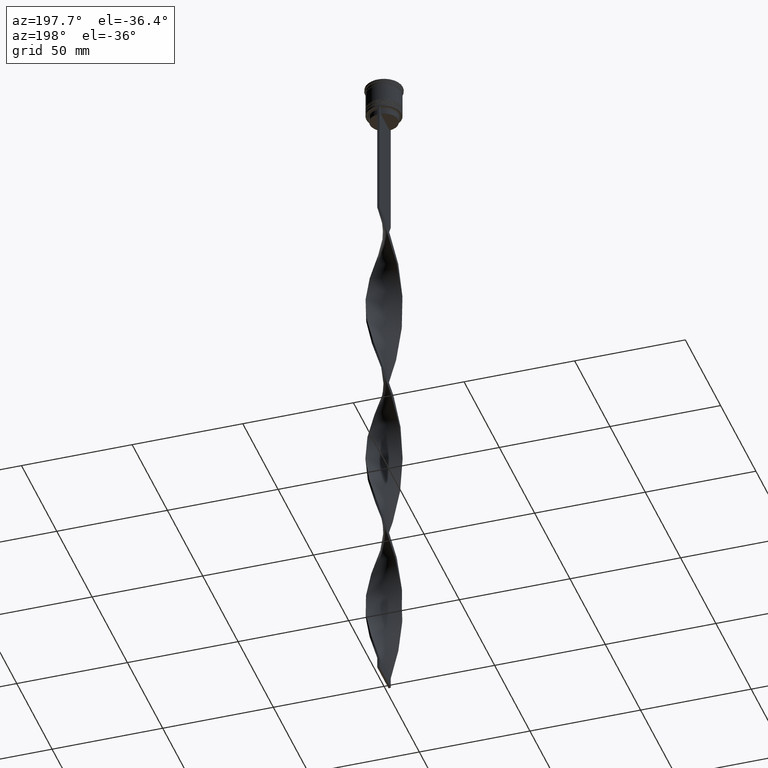
[diagram: clean part render]
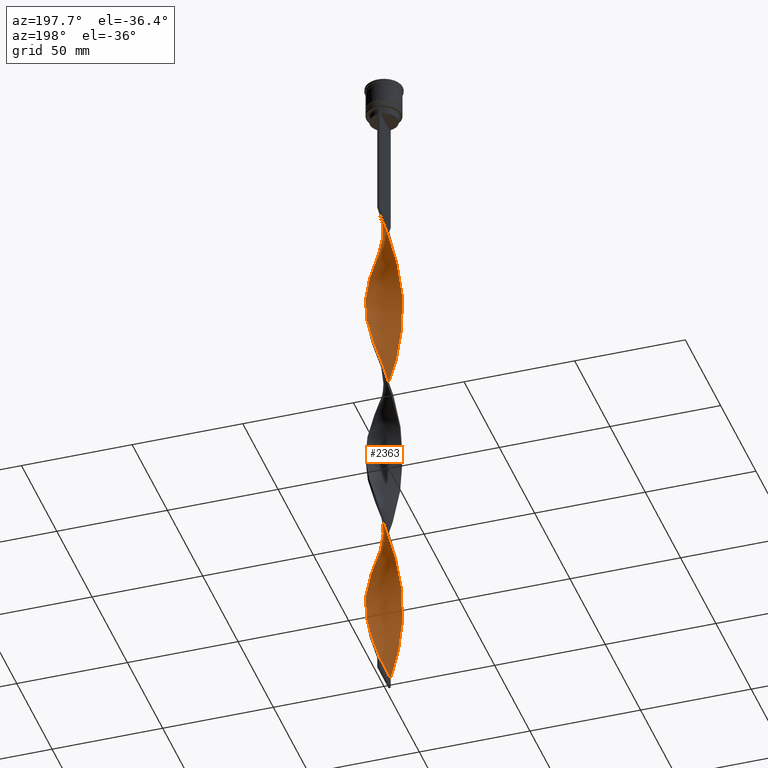
[diagram: same view with one face highlighted and labeled with its STEP entity id]
A machine part, auxiliary view. The second image highlights one B-rep face of the part: STEP entity #2363.
In plain terms, the highlighted face is a freeform B-spline surface patch.
Its self-contained STEP definition (entity closure, byte-faithful):
#1 = CARTESIAN_POINT ( 'NONE',  ( 0.5000000000000001110, -8.000000000000003553, -228.6666666666666856 ) ) ;
#8 = EDGE_CURVE ( 'NONE', #2853, #3767, #3711, .T. ) ;
#28 = CARTESIAN_POINT ( 'NONE',  ( -3.534302299652428481, -7.221957428453224637, -298.9583333333334281 ) ) ;
#34 = CARTESIAN_POINT ( 'NONE',  ( 2.361026126641884826, -7.685929837894286187, -74.02500000000000568 ) ) ;
#47 = CARTESIAN_POINT ( 'NONE',  ( 5.106790515527261043, -6.178243328853345595, -84.06666666666667709 ) ) ;
#66 = CARTESIAN_POINT ( 'NONE',  ( 2.947664213147156875, -7.453943633173757632, -76.03333333333334565 ) ) ;
#71 = CARTESIAN_POINT ( 'NONE',  ( 7.960649146587686964, -1.129613654596952621, -186.4916666666667027 ) ) ;
#86 = CARTESIAN_POINT ( 'NONE',  ( -0.4999999999999991673, 8.000000000000003553, -309.0000000000000000 ) ) ;
#87 = CARTESIAN_POINT ( 'NONE',  ( -6.901056943637166263, 4.077427260010557220, -256.7833333333333599 ) ) ;
#94 = CARTESIAN_POINT ( 'NONE',  ( -2.607565948252395849, 7.605824193947275269, -78.04166666666667140 ) ) ;
#95 = CARTESIAN_POINT ( 'NONE',  ( 7.960649146587693181, 1.129613654596947736, -110.1750000000000114 ) ) ;
#104 = CARTESIAN_POINT ( 'NONE',  ( -7.685929837894287964, -2.361026126641879941, -194.5250000000000341 ) ) ;
#109 = CARTESIAN_POINT ( 'NONE',  ( -7.920097061150121576, -1.385649445451607509, -274.8583333333332916 ) ) ;
#113 = CARTESIAN_POINT ( 'NONE',  ( -1.129613654596948624, -7.960649146587686964, -146.3250000000000171 ) ) ;
#119 = CARTESIAN_POINT ( 'NONE',  ( -4.830271518912646833, -6.427786469485480048, -210.5916666666666686 ) ) ;
#121 = CARTESIAN_POINT ( 'NONE',  ( -5.776330198885572642, 5.593028810685829022, -90.09166666666666856 ) ) ;
#128 = CARTESIAN_POINT ( 'NONE',  ( 7.979723957281213309, 0.7576315500242758461, -192.5166666666666799 ) ) ;
#137 = CARTESIAN_POINT ( 'NONE',  ( -2.607565948252403842, -7.605824193947279710, -218.6250000000000568 ) ) ;
#139 = CARTESIAN_POINT ( 'NONE',  ( 7.823289492240981247, -1.745319890619416725, -184.4833333333333201 ) ) ;
#148 = CARTESIAN_POINT ( 'NONE',  ( -7.960649146587686964, 1.129613654596948180, -106.1583333333333456 ) ) ;
#160 = CARTESIAN_POINT ( 'NONE',  ( 0.1296136545969488185, 8.039350853412315701, -146.3250000000000171 ) ) ;
#162 = CARTESIAN_POINT ( 'NONE',  ( -3.534302299652428481, -7.221957428453224637, -138.2916666666667140 ) ) ;
#170 = CARTESIAN_POINT ( 'NONE',  ( -6.766028581145814513, -4.297773521152308263, -284.9000000000000341 ) ) ;
#178 = CARTESIAN_POINT ( 'NONE',  ( -7.355047443376719229, 3.186420735822193429, -176.4499999999999886 ) ) ;
#181 = CARTESIAN_POINT ( 'NONE',  ( -1.745319890619416281, -7.823289492240981247, -144.3166666666666629 ) ) ;
#189 = CARTESIAN_POINT ( 'NONE',  ( -0.5000000000000011102, -7.999999999999996447, -309.0000000000000000 ) ) ;
#201 = CARTESIAN_POINT ( 'NONE',  ( -0.5000000000000011102, -7.999999999999996447, -148.3333333333333428 ) ) ;
#206 = CARTESIAN_POINT ( 'NONE',  ( -7.960649146587686964, 1.129613654596948180, -266.8249999999999886 ) ) ;
#208 = CARTESIAN_POINT ( 'NONE',  ( -0.5000000000000011102, -7.999999999999996447, -309.0000000000000000 ) ) ;
#222 = CARTESIAN_POINT ( 'NONE',  ( 0.7576315500242793988, 7.979723957281220414, -304.9833333333333485 ) ) ;
#225 = CARTESIAN_POINT ( 'NONE',  ( 7.104270692806155196, 3.765275523391978574, -202.5583333333333371 ) ) ;
#231 = CARTESIAN_POINT ( 'NONE',  ( -8.039350853412308595, -0.1296136545969467369, -270.8416666666666401 ) ) ;
#240 = CARTESIAN_POINT ( 'NONE',  ( 3.186420735822192984, 7.355047443376719229, -296.9499999999999886 ) ) ;
#246 = CARTESIAN_POINT ( 'NONE',  ( -0.1296136545969472920, 8.039350853412308595, -230.6750000000000114 ) ) ;
#247 = CARTESIAN_POINT ( 'NONE',  ( -1.996607696852005454, -7.762960627548705084, -220.6333333333333542 ) ) ;
#264 = CARTESIAN_POINT ( 'NONE',  ( 4.077427260010559884, -6.901056943637173369, -240.7166666666666686 ) ) ;
#279 = CARTESIAN_POINT ( 'NONE',  ( 7.762960627548705084, -1.996607696852003677, -260.8000000000000114 ) ) ;
#291 =( BOUNDED_SURFACE ( )  B_SPLINE_SURFACE ( 1, 2, ( 
 ( #2240, #3281, #820, #2369, #2991, #3634, #3650, #1106, #1126, #2072, #758, #121, #794, #3341, #3617, #1395, #1781, #512, #2685, #496, #1065, #433, #1439, #1375, #3673, #2748, #1456, #1765, #1417, #3934, #3032, #3053, #1700, #471, #2386, #162, #1046, #3359, #181, #2326, #201, #2033, #2724, #3988, #737, #3593, #777, #2407, #3955, #2097, #1740, #2011, #2350, #2974, #2662, #3299, #454, #1719, #139, #1088, #2052, #3318, #3014, #2706, #3970, #3694, #3374, #225, #532, #4009, #1796, #3073, #2426, #1480, #838, #2116, #1150, #3558, #687, #3536, #2585, #947, #722, #1954, #415, #2898, #1990, #2938, #2919, #3489, #1359, #1685, #1928, #3810, #87, #2268, #1322, #636, #2960, #1031, #3852, #3260, #3225, #109, #1342, #1971, #1282, #2224, #707, #2630, #2312, #355, #3577, #1904, #3178, #28, #3897, #330, #3829, #2873, #2561 ),
 ( #1592, #969, #2243, #3241, #66, #3512, #1660, #659, #47, #3201, #1625, #393, #1305, #988, #375, #1645, #2605, #3873, #1013, #2293, #3931, #1392, #3338, #2383, #2702, #1061, #1716, #1437, #3910, #2030, #2070, #493, #3030, #450, #2348, #2988, #1737, #3315, #1762, #160, #2971, #2323, #3012, #1415, #1698, #3615, #3985, #2722, #755, #3968, #3278, #2641, #3648, #3590, #178, #816, #3671, #1104, #3631, #2008, #790, #431, #3297, #104, #1122, #2404, #1043, #3253, #3953, #407, #2683, #119, #2049, #1676, #2660, #137, #1372, #1085, #2953, #1353, #734, #2367, #775, #469, #1779, #3730, #2158, #3122, #878, #3091, #550, #3050, #3416, #2177, #1513, #1539, #279, #567, #4085, #1819, #3754, #2825, #1836, #1454, #2782, #1225, #4040, #2501, #3691, #1184, #2095, #2459, #529, #2801, #240, #2133, #1494, #4062, #222, #3106, #3372 ) ),
 .UNSPECIFIED., .F., .F., .F. ) 
 B_SPLINE_SURFACE_WITH_KNOTS ( ( 2, 2 ),
 ( 3, 2, 2, 2, 2, 2, 2, 2, 2, 2, 2, 2, 2, 2, 2, 2, 2, 2, 2, 2, 2, 2, 2, 2, 2, 2, 2, 2, 2, 2, 2, 2, 2, 2, 2, 2, 2, 2, 2, 2, 2, 2, 2, 2, 2, 2, 2, 2, 2, 2, 2, 2, 2, 2, 2, 2, 2, 2, 2, 2, 3 ),
 ( 0.000000000000000000, 1.000000000000000000 ),
 ( 0.000000000000000000, 0.01250000000000000069, 0.02500000000000000139, 0.03749999999999999861, 0.05000000000000000278, 0.06250000000000000000, 0.07499999999999999722, 0.08749999999999999445, 0.1000000000000000056, 0.1125000000000000028, 0.1250000000000000000, 0.1375000000000000111, 0.1499999999999999944, 0.1625000000000000056, 0.1749999999999999889, 0.1875000000000000000, 0.2000000000000000111, 0.2124999999999999944, 0.2250000000000000056, 0.2374999999999999889, 0.2500000000000000000, 0.2625000000000000111, 0.2750000000000000222, 0.2874999999999999778, 0.2999999999999999889, 0.3125000000000000000, 0.3250000000000000111, 0.3375000000000000222, 0.3499999999999999778, 0.3624999999999999889, 0.3750000000000000000, 0.3875000000000000111, 0.4000000000000000222, 0.4124999999999999778, 0.4249999999999999889, 0.4375000000000000000, 0.4500000000000000111, 0.4625000000000000222, 0.4749999999999999778, 0.4874999999999999889, 0.5000000000000000000, 0.5124999999999999556, 0.5250000000000000222, 0.5374999999999999778, 0.5500000000000000444, 0.5625000000000000000, 0.5749999999999999556, 0.5875000000000000222, 0.5999999999999999778, 0.6125000000000000444, 0.6250000000000000000, 0.6374999999999999556, 0.6500000000000000222, 0.6624999999999999778, 0.6750000000000000444, 0.6875000000000000000, 0.6999999999999999556, 0.7125000000000000222, 0.7249999999999999778, 0.7375000000000000444, 0.7500000000000000000 ),
 .UNSPECIFIED. ) 
 GEOMETRIC_REPRESENTATION_ITEM ( )  RATIONAL_B_SPLINE_SURFACE ( (
 ( 1.000000000000000000, 0.9969173337331279638, 1.000000000000000000, 0.9969173337331279638, 1.000000000000000000, 0.9969173337331279638, 1.000000000000000000, 0.9969173337331279638, 1.000000000000000000, 0.9969173337331279638, 1.000000000000000000, 0.9969173337331279638, 1.000000000000000000, 0.9969173337331279638, 1.000000000000000000, 0.9969173337331279638, 1.000000000000000000, 0.9969173337331279638, 1.000000000000000000, 0.9969173337331279638, 1.000000000000000000, 0.9969173337331279638, 1.000000000000000000, 0.9969173337331279638, 1.000000000000000000, 0.9969173337331279638, 1.000000000000000000, 0.9969173337331279638, 1.000000000000000000, 0.9969173337331279638, 1.000000000000000000, 0.9969173337331279638, 1.000000000000000000, 0.9969173337331279638, 1.000000000000000000, 0.9969173337331279638, 1.000000000000000000, 0.9969173337331279638, 1.000000000000000000, 0.9969173337331279638, 1.000000000000000000, 0.9969173337331279638, 1.000000000000000000, 0.9969173337331279638, 1.000000000000000000, 0.9969173337331279638, 1.000000000000000000, 0.9969173337331279638, 1.000000000000000000, 0.9969173337331279638, 1.000000000000000000, 0.9969173337331279638, 1.000000000000000000, 0.9969173337331279638, 1.000000000000000000, 0.9969173337331279638, 1.000000000000000000, 0.9969173337331279638, 1.000000000000000000, 0.9969173337331279638, 1.000000000000000000, 0.9969173337331279638, 1.000000000000000000, 0.9969173337331279638, 1.000000000000000000, 0.9969173337331279638, 1.000000000000000000, 0.9969173337331279638, 1.000000000000000000, 0.9969173337331279638, 1.000000000000000000, 0.9969173337331279638, 1.000000000000000000, 0.9969173337331279638, 1.000000000000000000, 0.9969173337331279638, 1.000000000000000000, 0.9969173337331279638, 1.000000000000000000, 0.9969173337331279638, 1.000000000000000000, 0.9969173337331279638, 1.000000000000000000, 0.9969173337331279638, 1.000000000000000000, 0.9969173337331279638, 1.000000000000000000, 0.9969173337331279638, 1.000000000000000000, 0.9969173337331279638, 1.000000000000000000, 0.9969173337331279638, 1.000000000000000000, 0.9969173337331279638, 1.000000000000000000, 0.9969173337331279638, 1.000000000000000000, 0.9969173337331279638, 1.000000000000000000, 0.9969173337331279638, 1.000000000000000000, 0.9969173337331279638, 1.000000000000000000, 0.9969173337331279638, 1.000000000000000000, 0.9969173337331279638, 1.000000000000000000, 0.9969173337331279638, 1.000000000000000000, 0.9969173337331279638, 1.000000000000000000, 0.9969173337331279638, 1.000000000000000000, 0.9969173337331279638, 1.000000000000000000, 0.9969173337331279638, 1.000000000000000000, 0.9969173337331279638, 1.000000000000000000, 0.9969173337331279638, 1.000000000000000000),
 ( 1.000000000000000000, 0.9969173337331279638, 1.000000000000000000, 0.9969173337331279638, 1.000000000000000000, 0.9969173337331279638, 1.000000000000000000, 0.9969173337331279638, 1.000000000000000000, 0.9969173337331279638, 1.000000000000000000, 0.9969173337331279638, 1.000000000000000000, 0.9969173337331279638, 1.000000000000000000, 0.9969173337331279638, 1.000000000000000000, 0.9969173337331279638, 1.000000000000000000, 0.9969173337331279638, 1.000000000000000000, 0.9969173337331279638, 1.000000000000000000, 0.9969173337331279638, 1.000000000000000000, 0.9969173337331279638, 1.000000000000000000, 0.9969173337331279638, 1.000000000000000000, 0.9969173337331279638, 1.000000000000000000, 0.9969173337331279638, 1.000000000000000000, 0.9969173337331279638, 1.000000000000000000, 0.9969173337331279638, 1.000000000000000000, 0.9969173337331279638, 1.000000000000000000, 0.9969173337331279638, 1.000000000000000000, 0.9969173337331279638, 1.000000000000000000, 0.9969173337331279638, 1.000000000000000000, 0.9969173337331279638, 1.000000000000000000, 0.9969173337331279638, 1.000000000000000000, 0.9969173337331279638, 1.000000000000000000, 0.9969173337331279638, 1.000000000000000000, 0.9969173337331279638, 1.000000000000000000, 0.9969173337331279638, 1.000000000000000000, 0.9969173337331279638, 1.000000000000000000, 0.9969173337331279638, 1.000000000000000000, 0.9969173337331279638, 1.000000000000000000, 0.9969173337331279638, 1.000000000000000000, 0.9969173337331279638, 1.000000000000000000, 0.9969173337331279638, 1.000000000000000000, 0.9969173337331279638, 1.000000000000000000, 0.9969173337331279638, 1.000000000000000000, 0.9969173337331279638, 1.000000000000000000, 0.9969173337331279638, 1.000000000000000000, 0.9969173337331279638, 1.000000000000000000, 0.9969173337331279638, 1.000000000000000000, 0.9969173337331279638, 1.000000000000000000, 0.9969173337331279638, 1.000000000000000000, 0.9969173337331279638, 1.000000000000000000, 0.9969173337331279638, 1.000000000000000000, 0.9969173337331279638, 1.000000000000000000, 0.9969173337331279638, 1.000000000000000000, 0.9969173337331279638, 1.000000000000000000, 0.9969173337331279638, 1.000000000000000000, 0.9969173337331279638, 1.000000000000000000, 0.9969173337331279638, 1.000000000000000000, 0.9969173337331279638, 1.000000000000000000, 0.9969173337331279638, 1.000000000000000000, 0.9969173337331279638, 1.000000000000000000, 0.9969173337331279638, 1.000000000000000000, 0.9969173337331279638, 1.000000000000000000, 0.9969173337331279638, 1.000000000000000000, 0.9969173337331279638, 1.000000000000000000, 0.9969173337331279638, 1.000000000000000000, 0.9969173337331279638, 1.000000000000000000, 0.9969173337331279638, 1.000000000000000000) ) ) 
 REPRESENTATION_ITEM ( '' )  SURFACE ( )  );
#311 = CARTESIAN_POINT ( 'NONE',  ( -3.765275523391984791, -7.104270692806157861, -214.6083333333333769 ) ) ;
#329 = CARTESIAN_POINT ( 'NONE',  ( 7.920097061150129569, -1.385649445451610173, -262.8083333333333371 ) ) ;
#330 = CARTESIAN_POINT ( 'NONE',  ( -2.361026126641883938, -7.685929837894279082, -302.9750000000000227 ) ) ;
#355 = CARTESIAN_POINT ( 'NONE',  ( -5.593028810685829910, -5.776330198885572642, -290.9250000000000682 ) ) ;
#375 = CARTESIAN_POINT ( 'NONE',  ( 7.355047443376719229, -3.186420735822192540, -96.11666666666667425 ) ) ;
#379 = CARTESIAN_POINT ( 'NONE',  ( 0.7576315500242762901, -7.979723957281215085, -152.3499999999999943 ) ) ;
#391 = CARTESIAN_POINT ( 'NONE',  ( 3.186420735822192984, 7.355047443376719229, -136.2833333333333314 ) ) ;
#392 = CARTESIAN_POINT ( 'NONE',  ( 4.297773521152314480, 6.766028581145818066, -292.9333333333333371 ) ) ;
#393 = CARTESIAN_POINT ( 'NONE',  ( 6.427786469485483600, -4.830271518912642392, -90.09166666666666856 ) ) ;
#398 = CARTESIAN_POINT ( 'NONE',  ( -4.620552220368686847, -6.580156458821108778, -134.2750000000000341 ) ) ;
#407 = CARTESIAN_POINT ( 'NONE',  ( -5.776330198885577083, -5.593028810685835239, -206.5750000000000171 ) ) ;
#414 = CARTESIAN_POINT ( 'NONE',  ( 7.221957428453231742, 3.534302299652429813, -278.8750000000000000 ) ) ;
#415 = CARTESIAN_POINT ( 'NONE',  ( -1.996607696852001013, 7.762960627548698866, -236.6999999999999886 ) ) ;
#423 = CARTESIAN_POINT ( 'NONE',  ( 7.685929837894279970, -2.361026126641881273, -182.4749999999999943 ) ) ;
#431 = CARTESIAN_POINT ( 'NONE',  ( -7.960649146587693181, -1.129613654596950623, -190.5083333333333826 ) ) ;
#433 = CARTESIAN_POINT ( 'NONE',  ( -8.039350853412310371, -0.1296136545969467091, -110.1749999999999972 ) ) ;
#440 = CARTESIAN_POINT ( 'NONE',  ( 1.996607696852000124, -7.762960627548699755, -156.3666666666666458 ) ) ;
#441 = CARTESIAN_POINT ( 'NONE',  ( 5.776330198885578859, 5.593028810685832575, -126.2416666666666742 ) ) ;
#450 = CARTESIAN_POINT ( 'NONE',  ( 3.765275523391987011, 7.104270692806157861, -134.2750000000000341 ) ) ;
#454 = CARTESIAN_POINT ( 'NONE',  ( 7.453943633173751415, -2.947664213147155987, -180.4666666666666686 ) ) ;
#459 = CARTESIAN_POINT ( 'NONE',  ( -0.5000000000000011102, -7.999999999999996447, -148.3333333333333428 ) ) ;
#460 = CARTESIAN_POINT ( 'NONE',  ( 6.178243328853345595, 5.106790515527260155, -124.2333333333333343 ) ) ;
#469 = CARTESIAN_POINT ( 'NONE',  ( 2.361026126641884826, -7.685929837894286187, -234.6916666666666629 ) ) ;
#471 = CARTESIAN_POINT ( 'NONE',  ( -4.620552220368686847, -6.580156458821108778, -134.2750000000000341 ) ) ;
#479 = CARTESIAN_POINT ( 'NONE',  ( -7.221957428453224637, 3.534302299652428037, -258.7916666666666288 ) ) ;
#483 = CARTESIAN_POINT ( 'NONE',  ( -0.4999999999999991673, 8.000000000000003553, -309.0000000000000000 ) ) ;
#493 = CARTESIAN_POINT ( 'NONE',  ( 4.830271518912643280, 6.427786469485483600, -130.2583333333333826 ) ) ;
#496 = CARTESIAN_POINT ( 'NONE',  ( -7.960649146587686964, 1.129613654596948402, -106.1583333333333456 ) ) ;
#502 = CARTESIAN_POINT ( 'NONE',  ( -1.745319890619416281, -7.823289492240981247, -304.9833333333333485 ) ) ;
#512 = CARTESIAN_POINT ( 'NONE',  ( -7.685929837894279082, 2.361026126641883938, -102.1416666666666941 ) ) ;
#529 = CARTESIAN_POINT ( 'NONE',  ( 4.297773521152314480, 6.766028581145818066, -292.9333333333333371 ) ) ;
#532 = CARTESIAN_POINT ( 'NONE',  ( 6.766028581145814513, 4.297773521152307374, -204.5666666666666629 ) ) ;
#537 = CARTESIAN_POINT ( 'NONE',  ( 2.947664213147156875, 7.453943633173751415, -220.6333333333333542 ) ) ;
#550 = CARTESIAN_POINT ( 'NONE',  ( 6.010407640085658088, -5.303300858899109294, -248.7500000000000000 ) ) ;
#556 = CARTESIAN_POINT ( 'NONE',  ( -5.106790515527258378, -6.178243328853339378, -292.9333333333333371 ) ) ;
#557 = CARTESIAN_POINT ( 'NONE',  ( -6.178243328853346483, -5.106790515527260155, -204.5666666666666629 ) ) ;
#567 = CARTESIAN_POINT ( 'NONE',  ( 7.920097061150128681, -1.385649445451610173, -262.8083333333332803 ) ) ;
#592 = CARTESIAN_POINT ( 'NONE',  ( -8.039350853412315701, 0.1296136545969528431, -186.4916666666667027 ) ) ;
#599 = CARTESIAN_POINT ( 'NONE',  ( 1.745319890619416503, -7.823289492240990128, -72.01666666666667993 ) ) ;
#618 = CARTESIAN_POINT ( 'NONE',  ( 4.297773521152314480, 6.766028581145818066, -132.2666666666666799 ) ) ;
#619 = CARTESIAN_POINT ( 'NONE',  ( -4.297773521152315368, -6.766028581145818066, -212.6000000000000227 ) ) ;
#636 = CARTESIAN_POINT ( 'NONE',  ( -7.685929837894279082, 2.361026126641883938, -262.8083333333332803 ) ) ;
#658 = CARTESIAN_POINT ( 'NONE',  ( 7.355047443376719229, -3.186420735822192540, -256.7833333333333599 ) ) ;
#659 = CARTESIAN_POINT ( 'NONE',  ( 4.620552220368689511, -6.580156458821115883, -82.05833333333336554 ) ) ;
#685 = CARTESIAN_POINT ( 'NONE',  ( 5.593028810685833463, -5.776330198885577971, -246.7416666666667027 ) ) ;
#687 = CARTESIAN_POINT ( 'NONE',  ( 1.745319890619417169, 7.823289492240981247, -224.6500000000000057 ) ) ;
#693 = CARTESIAN_POINT ( 'NONE',  ( 7.453943633173759409, 2.947664213147156431, -116.2000000000000028 ) ) ;
#707 = CARTESIAN_POINT ( 'NONE',  ( -6.766028581145814513, -4.297773521152308263, -284.9000000000000341 ) ) ;
#711 = CARTESIAN_POINT ( 'NONE',  ( -6.010407640085651870, -5.303300858899103076, -128.2500000000000000 ) ) ;
#712 = CARTESIAN_POINT ( 'NONE',  ( 7.104270692806156973, -3.765275523391986567, -94.10833333333334849 ) ) ;
#721 = CARTESIAN_POINT ( 'NONE',  ( 7.104270692806156973, -3.765275523391986567, -254.7749999999999773 ) ) ;
#722 = CARTESIAN_POINT ( 'NONE',  ( -0.7576315500242774004, 7.979723957281215085, -232.6833333333333371 ) ) ;
#726 = CARTESIAN_POINT ( 'NONE',  ( 4.297773521152308263, -6.766028581145814513, -164.3999999999999773 ) ) ;
#734 = CARTESIAN_POINT ( 'NONE',  ( 0.5000000000000001110, -8.000000000000003553, -228.6666666666666856 ) ) ;
#737 = CARTESIAN_POINT ( 'NONE',  ( 1.996607696852000124, -7.762960627548699755, -156.3666666666666458 ) ) ;
#746 = CARTESIAN_POINT ( 'NONE',  ( 8.000000000000003553, 0.4999999999999995559, -108.1666666666666714 ) ) ;
#755 = CARTESIAN_POINT ( 'NONE',  ( -5.106790515527260155, 6.178243328853345595, -164.3999999999999773 ) ) ;
#758 = CARTESIAN_POINT ( 'NONE',  ( -5.303300858899103964, 6.010407640085652758, -88.08333333333334281 ) ) ;
#765 = CARTESIAN_POINT ( 'NONE',  ( -7.762960627548699755, -1.996607696852000569, -116.2000000000000028 ) ) ;
#775 = CARTESIAN_POINT ( 'NONE',  ( 1.745319890619416503, -7.823289492240990128, -232.6833333333333371 ) ) ;
#777 = CARTESIAN_POINT ( 'NONE',  ( 3.186420735822187655, -7.355047443376713900, -160.3833333333333258 ) ) ;
#781 = CARTESIAN_POINT ( 'NONE',  ( -6.766028581145814513, -4.297773521152308263, -124.2333333333333343 ) ) ;
#790 = CARTESIAN_POINT ( 'NONE',  ( -8.000000000000003553, -0.4999999999999986122, -188.5000000000000000 ) ) ;
#794 = CARTESIAN_POINT ( 'NONE',  ( -6.178243328853340266, 5.106790515527257490, -92.09999999999999432 ) ) ;
#803 = CARTESIAN_POINT ( 'NONE',  ( -6.580156458821108778, 4.620552220368686847, -254.7749999999999773 ) ) ;
#816 = CARTESIAN_POINT ( 'NONE',  ( -7.605824193947279710, 2.607565948252403398, -178.4583333333333144 ) ) ;
#820 = CARTESIAN_POINT ( 'NONE',  ( -0.7576315500242774004, 7.979723957281215085, -72.01666666666667993 ) ) ;
#838 = CARTESIAN_POINT ( 'NONE',  ( 4.077427260010558108, 6.901056943637166263, -216.6166666666666742 ) ) ;
#845 = CARTESIAN_POINT ( 'NONE',  ( -0.7576315500242774004, 7.979723957281215085, -232.6833333333333371 ) ) ;
#863 = CARTESIAN_POINT ( 'NONE',  ( -2.607565948252395849, 7.605824193947275269, -238.7083333333333144 ) ) ;
#864 = CARTESIAN_POINT ( 'NONE',  ( -7.104270692806158749, 3.765275523391983903, -174.4416666666666629 ) ) ;
#878 = CARTESIAN_POINT ( 'NONE',  ( 5.106790515527261043, -6.178243328853345595, -244.7333333333333201 ) ) ;
#883 = CARTESIAN_POINT ( 'NONE',  ( 1.745319890619417169, 7.823289492240981247, -224.6500000000000057 ) ) ;
#902 = CARTESIAN_POINT ( 'NONE',  ( -0.5000000000000011102, -7.999999999999996447, -309.0000000000000000 ) ) ;
#917 = CARTESIAN_POINT ( 'NONE',  ( -2.947664213147155987, 7.453943633173759409, -156.3666666666666458 ) ) ;
#946 = CARTESIAN_POINT ( 'NONE',  ( -3.534302299652429813, 7.221957428453232630, -158.3750000000000284 ) ) ;
#947 = CARTESIAN_POINT ( 'NONE',  ( -0.1296136545969472642, 8.039350853412310371, -230.6750000000000114 ) ) ;
#968 = CARTESIAN_POINT ( 'NONE',  ( 2.607565948252399401, 7.605824193947282374, -298.9583333333333712 ) ) ;
#969 = CARTESIAN_POINT ( 'NONE',  ( 1.129613654596948402, -7.960649146587693181, -70.00833333333335418 ) ) ;
#987 = CARTESIAN_POINT ( 'NONE',  ( 0.7576315500242793988, 7.979723957281220414, -144.3166666666666629 ) ) ;
#988 = CARTESIAN_POINT ( 'NONE',  ( 7.104270692806157861, -3.765275523391987011, -94.10833333333334849 ) ) ;
#1013 = CARTESIAN_POINT ( 'NONE',  ( 7.979723957281222191, -0.7576315500242788437, -104.1500000000000057 ) ) ;
#1018 = CARTESIAN_POINT ( 'NONE',  ( -7.823289492240983023, 1.745319890619415837, -104.1500000000000057 ) ) ;
#1020 = CARTESIAN_POINT ( 'NONE',  ( 4.830271518912642392, 6.427786469485482712, -130.2583333333333542 ) ) ;
#1031 = CARTESIAN_POINT ( 'NONE',  ( -7.960649146587686964, 1.129613654596948402, -266.8249999999999886 ) ) ;
#1036 = CARTESIAN_POINT ( 'NONE',  ( -6.901056943637166263, 4.077427260010557220, -96.11666666666667425 ) ) ;
#1043 = CARTESIAN_POINT ( 'NONE',  ( -6.901056943637174257, -4.077427260010558996, -200.5500000000000114 ) ) ;
#1046 = CARTESIAN_POINT ( 'NONE',  ( -2.947664213147155543, -7.453943633173751415, -140.3000000000000114 ) ) ;
#1049 = CARTESIAN_POINT ( 'NONE',  ( 7.823289492240990128, 1.745319890619416059, -272.8500000000000227 ) ) ;
#1054 = CARTESIAN_POINT ( 'NONE',  ( -7.685929837894279082, 2.361026126641883938, -102.1416666666666799 ) ) ;
#1061 = CARTESIAN_POINT ( 'NONE',  ( 7.221957428453231742, 3.534302299652429813, -118.2083333333333144 ) ) ;
#1065 = CARTESIAN_POINT ( 'NONE',  ( -7.999999999999996447, 0.5000000000000006661, -108.1666666666666714 ) ) ;
#1076 = CARTESIAN_POINT ( 'NONE',  ( 1.385649445451606843, -7.920097061150122464, -154.3583333333333201 ) ) ;
#1077 = CARTESIAN_POINT ( 'NONE',  ( 7.920097061150129569, -1.385649445451610173, -102.1416666666666799 ) ) ;
#1084 = CARTESIAN_POINT ( 'NONE',  ( 0.5000000000000001110, 7.999999999999996447, -68.00000000000000000 ) ) ;
#1085 = CARTESIAN_POINT ( 'NONE',  ( -1.385649445451607953, -7.920097061150128681, -222.6416666666667084 ) ) ;
#1088 = CARTESIAN_POINT ( 'NONE',  ( 7.960649146587686964, -1.129613654596952621, -186.4916666666667027 ) ) ;
#1094 = CARTESIAN_POINT ( 'NONE',  ( -7.104270692806152532, -3.765275523391982126, -122.2250000000000085 ) ) ;
#1104 = CARTESIAN_POINT ( 'NONE',  ( -7.920097061150128681, 1.385649445451607509, -182.4749999999999943 ) ) ;
#1106 = CARTESIAN_POINT ( 'NONE',  ( -3.765275523391982571, 7.104270692806153420, -82.05833333333336554 ) ) ;
#1113 = CARTESIAN_POINT ( 'NONE',  ( -7.920097061150122464, -1.385649445451607287, -274.8583333333332916 ) ) ;
#1122 = CARTESIAN_POINT ( 'NONE',  ( -7.453943633173759409, -2.947664213147155543, -196.5333333333333314 ) ) ;
#1126 = CARTESIAN_POINT ( 'NONE',  ( -4.297773521152309151, 6.766028581145814513, -84.06666666666667709 ) ) ;
#1135 = CARTESIAN_POINT ( 'NONE',  ( 7.605824193947274381, 2.607565948252397625, -198.5416666666666856 ) ) ;
#1150 = CARTESIAN_POINT ( 'NONE',  ( 2.947664213147156875, 7.453943633173751415, -220.6333333333333542 ) ) ;
#1157 = CARTESIAN_POINT ( 'NONE',  ( -5.776330198885572642, 5.593028810685829022, -250.7583333333332973 ) ) ;
#1173 = CARTESIAN_POINT ( 'NONE',  ( -6.427786469485477383, -4.830271518912636175, -286.9083333333333599 ) ) ;
#1174 = CARTESIAN_POINT ( 'NONE',  ( -8.000000000000003553, -0.4999999999999986122, -188.5000000000000000 ) ) ;
#1184 = CARTESIAN_POINT ( 'NONE',  ( 5.776330198885578859, 5.593028810685832575, -286.9083333333334167 ) ) ;
#1190 = CARTESIAN_POINT ( 'NONE',  ( -1.385649445451607731, 7.920097061150122464, -234.6916666666666629 ) ) ;
#1225 = CARTESIAN_POINT ( 'NONE',  ( 7.221957428453231742, 3.534302299652429813, -278.8750000000000000 ) ) ;
#1232 = CARTESIAN_POINT ( 'NONE',  ( -6.766028581145818066, 4.297773521152314480, -172.4333333333333371 ) ) ;
#1282 = CARTESIAN_POINT ( 'NONE',  ( -7.355047443376713900, -3.186420735822188544, -280.8833333333333826 ) ) ;
#1286 = EDGE_LOOP ( 'NONE', ( #4047, #2759, #1803, #1644 ) ) ;
#1304 = CARTESIAN_POINT ( 'NONE',  ( 8.000000000000003553, 0.4999999999999995559, -268.8333333333333712 ) ) ;
#1305 = CARTESIAN_POINT ( 'NONE',  ( 6.766028581145818954, -4.297773521152313592, -92.09999999999999432 ) ) ;
#1322 = CARTESIAN_POINT ( 'NONE',  ( -7.453943633173751415, 2.947664213147155543, -260.8000000000000114 ) ) ;
#1326 = CARTESIAN_POINT ( 'NONE',  ( -6.580156458821108778, 4.620552220368686847, -94.10833333333334849 ) ) ;
#1342 = CARTESIAN_POINT ( 'NONE',  ( -7.762960627548699755, -1.996607696852000569, -276.8666666666667311 ) ) ;
#1347 = CARTESIAN_POINT ( 'NONE',  ( -3.186420735822188544, 7.355047443376713900, -80.05000000000001137 ) ) ;
#1353 = CARTESIAN_POINT ( 'NONE',  ( -0.1296136545969532317, -8.039350853412315701, -226.6583333333333883 ) ) ;
#1358 = CARTESIAN_POINT ( 'NONE',  ( 7.605824193947282374, -2.607565948252398957, -258.7916666666666288 ) ) ;
#1359 = CARTESIAN_POINT ( 'NONE',  ( -5.303300858899103964, 6.010407640085652758, -248.7500000000000000 ) ) ;
#1363 = CARTESIAN_POINT ( 'NONE',  ( -2.947664213147155543, -7.453943633173751415, -140.3000000000000114 ) ) ;
#1364 = CARTESIAN_POINT ( 'NONE',  ( 8.039350853412315701, -0.1296136545969482634, -106.1583333333333456 ) ) ;
#1372 = CARTESIAN_POINT ( 'NONE',  ( -1.996607696852005454, -7.762960627548705084, -220.6333333333333542 ) ) ;
#1375 = CARTESIAN_POINT ( 'NONE',  ( -7.920097061150121576, -1.385649445451607509, -114.1916666666666771 ) ) ;
#1383 = CARTESIAN_POINT ( 'NONE',  ( -4.830271518912637063, 6.427786469485478271, -86.07500000000003126 ) ) ;
#1392 = CARTESIAN_POINT ( 'NONE',  ( 7.960649146587693181, 1.129613654596947958, -110.1749999999999972 ) ) ;
#1395 = CARTESIAN_POINT ( 'NONE',  ( -7.221957428453224637, 3.534302299652428037, -98.12500000000002842 ) ) ;
#1407 = CARTESIAN_POINT ( 'NONE',  ( -7.605824193947275269, -2.607565948252395405, -118.2083333333333286 ) ) ;
#1415 = CARTESIAN_POINT ( 'NONE',  ( -2.361026126641883938, 7.685929837894287076, -154.3583333333332916 ) ) ;
#1417 = CARTESIAN_POINT ( 'NONE',  ( -6.766028581145814513, -4.297773521152308263, -124.2333333333333343 ) ) ;
#1425 = CARTESIAN_POINT ( 'NONE',  ( 4.077427260010558108, 6.901056943637166263, -216.6166666666666742 ) ) ;
#1437 = CARTESIAN_POINT ( 'NONE',  ( 6.580156458821115883, 4.620552220368689511, -122.2250000000000085 ) ) ;
#1439 = CARTESIAN_POINT ( 'NONE',  ( -7.979723957281215085, -0.7576315500242769563, -112.1833333333333229 ) ) ;
#1454 = CARTESIAN_POINT ( 'NONE',  ( 7.685929837894287076, 2.361026126641884382, -274.8583333333332916 ) ) ;
#1456 = CARTESIAN_POINT ( 'NONE',  ( -7.355047443376713900, -3.186420735822188544, -120.2166666666666686 ) ) ;
#1465 = CARTESIAN_POINT ( 'NONE',  ( -1.129613654596948624, -7.960649146587686964, -306.9916666666667879 ) ) ;
#1480 = CARTESIAN_POINT ( 'NONE',  ( 4.620552220368685070, 6.580156458821110554, -214.6083333333333769 ) ) ;
#1484 = CARTESIAN_POINT ( 'NONE',  ( -7.104270692806152532, -3.765275523391982126, -282.8916666666667084 ) ) ;
#1485 = CARTESIAN_POINT ( 'NONE',  ( -6.427786469485480048, 4.830271518912645945, -170.4250000000000398 ) ) ;
#1494 = CARTESIAN_POINT ( 'NONE',  ( 1.996607696852004121, 7.762960627548705084, -300.9666666666666401 ) ) ;
#1501 = CARTESIAN_POINT ( 'NONE',  ( 7.104270692806154308, 3.765275523391978574, -202.5583333333333371 ) ) ;
#1502 = CARTESIAN_POINT ( 'NONE',  ( -1.385649445451607731, -7.920097061150129569, -222.6416666666667084 ) ) ;
#1513 = CARTESIAN_POINT ( 'NONE',  ( 7.355047443376719229, -3.186420735822192540, -256.7833333333333599 ) ) ;
#1524 = CARTESIAN_POINT ( 'NONE',  ( -5.303300858899111070, -6.010407640085655423, -208.5833333333333428 ) ) ;
#1539 = CARTESIAN_POINT ( 'NONE',  ( 7.605824193947281486, -2.607565948252398957, -258.7916666666666288 ) ) ;
#1546 = CARTESIAN_POINT ( 'NONE',  ( -4.620552220368688623, 6.580156458821115883, -162.3916666666666799 ) ) ;
#1554 = CARTESIAN_POINT ( 'NONE',  ( 2.947664213147156875, -7.453943633173757632, -76.03333333333334565 ) ) ;
#1561 =( BOUNDED_CURVE ( )  B_SPLINE_CURVE ( 2, ( #2297, #3960, #2634, #2611, #3943, #94, #1347, #1725, #2998, #1383, #2317, #3288, #2023, #1326, #1036, #2652, #3881, #1054, #1018, #148, #1690, #1975, #2693, #2669, #765, #1407, #3582, #1094, #781, #3562, #711, #2039, #3306, #398, #3247, #1664, #1363, #2375, #1707, #113, #459, #2059, #379, #1076, #440, #2943, #2360, #3901, #726, #1994, #3639, #3623, #3265, #1650, #2336, #2923, #3920, #423, #2979, #71, #2965, #3603, #128, #2450, #2774, #1135, #1786, #1501, #3976, #2104, #2142, #3399, #1804, #2788, #1425, #2756, #537, #2432, #883, #4048, #3382, #246, #845, #1190, #3059, #863, #2469, #3081, #2713, #4014, #3740, #1157, #3324, #803, #3699, #479, #2122, #1772, #4032, #206, #3364, #231, #1751, #1113, #3349, #3022, #3097, #1484, #170, #1173, #2393, #3714, #556, #3657, #1825, #3041, #2415, #2084, #502, #1465, #189 ),
 .UNSPECIFIED., .F., .T. ) 
 B_SPLINE_CURVE_WITH_KNOTS ( ( 3, 2, 2, 2, 2, 2, 2, 2, 2, 2, 2, 2, 2, 2, 2, 2, 2, 2, 2, 2, 2, 2, 2, 2, 2, 2, 2, 2, 2, 2, 2, 2, 2, 2, 2, 2, 2, 2, 2, 2, 2, 2, 2, 2, 2, 2, 2, 2, 2, 2, 2, 2, 2, 2, 2, 2, 2, 2, 2, 2, 3 ),
 ( 0.000000000000000000, 0.01250000000000000243, 0.02500000000000000486, 0.03749999999999999861, 0.05000000000000000971, 0.06250000000000000000, 0.07499999999999999722, 0.08749999999999998057, 0.1000000000000000194, 0.1125000000000000028, 0.1250000000000000000, 0.1375000000000000111, 0.1499999999999999944, 0.1625000000000000056, 0.1749999999999999611, 0.1875000000000000000, 0.2000000000000000389, 0.2124999999999999944, 0.2250000000000000056, 0.2374999999999999611, 0.2500000000000000000, 0.2625000000000000111, 0.2750000000000000222, 0.2874999999999999778, 0.2999999999999999889, 0.3125000000000000000, 0.3250000000000000111, 0.3375000000000000777, 0.3499999999999999223, 0.3624999999999999889, 0.3750000000000000000, 0.3875000000000000111, 0.4000000000000000777, 0.4124999999999999223, 0.4249999999999999889, 0.4375000000000000000, 0.4500000000000000111, 0.4625000000000000777, 0.4749999999999999223, 0.4874999999999999889, 0.5000000000000000000, 0.5124999999999999556, 0.5250000000000000222, 0.5374999999999999778, 0.5500000000000000444, 0.5625000000000000000, 0.5749999999999999556, 0.5875000000000000222, 0.5999999999999999778, 0.6125000000000000444, 0.6250000000000000000, 0.6374999999999999556, 0.6500000000000000222, 0.6624999999999999778, 0.6750000000000001554, 0.6875000000000000000, 0.6999999999999998446, 0.7125000000000000222, 0.7249999999999999778, 0.7375000000000001554, 0.7500000000000000000 ),
 .UNSPECIFIED. ) 
 CURVE ( )  GEOMETRIC_REPRESENTATION_ITEM ( )  RATIONAL_B_SPLINE_CURVE ( ( 1.000000000000000000, 0.9969173337331279638, 1.000000000000000000, 0.9969173337331279638, 1.000000000000000000, 0.9969173337331279638, 1.000000000000000000, 0.9969173337331279638, 1.000000000000000000, 0.9969173337331279638, 1.000000000000000000, 0.9969173337331279638, 1.000000000000000000, 0.9969173337331279638, 1.000000000000000000, 0.9969173337331279638, 1.000000000000000000, 0.9969173337331279638, 1.000000000000000000, 0.9969173337331279638, 1.000000000000000000, 0.9969173337331279638, 1.000000000000000000, 0.9969173337331279638, 1.000000000000000000, 0.9969173337331279638, 1.000000000000000000, 0.9969173337331279638, 1.000000000000000000, 0.9969173337331279638, 1.000000000000000000, 0.9969173337331279638, 1.000000000000000000, 0.9969173337331279638, 1.000000000000000000, 0.9969173337331279638, 1.000000000000000000, 0.9969173337331279638, 1.000000000000000000, 0.9969173337331279638, 1.000000000000000000, 0.9969173337331279638, 1.000000000000000000, 0.9969173337331279638, 1.000000000000000000, 0.9969173337331279638, 1.000000000000000000, 0.9969173337331279638, 1.000000000000000000, 0.9969173337331279638, 1.000000000000000000, 0.9969173337331279638, 1.000000000000000000, 0.9969173337331279638, 1.000000000000000000, 0.9969173337331279638, 1.000000000000000000, 0.9969173337331279638, 1.000000000000000000, 0.9969173337331279638, 1.000000000000000000, 0.9969173337331279638, 1.000000000000000000, 0.9969173337331279638, 1.000000000000000000, 0.9969173337331279638, 1.000000000000000000, 0.9969173337331279638, 1.000000000000000000, 0.9969173337331279638, 1.000000000000000000, 0.9969173337331279638, 1.000000000000000000, 0.9969173337331279638, 1.000000000000000000, 0.9969173337331279638, 1.000000000000000000, 0.9969173337331279638, 1.000000000000000000, 0.9969173337331279638, 1.000000000000000000, 0.9969173337331279638, 1.000000000000000000, 0.9969173337331279638, 1.000000000000000000, 0.9969173337331279638, 1.000000000000000000, 0.9969173337331279638, 1.000000000000000000, 0.9969173337331279638, 1.000000000000000000, 0.9969173337331279638, 1.000000000000000000, 0.9969173337331279638, 1.000000000000000000, 0.9969173337331279638, 1.000000000000000000, 0.9969173337331279638, 1.000000000000000000, 0.9969173337331279638, 1.000000000000000000, 0.9969173337331279638, 1.000000000000000000, 0.9969173337331279638, 1.000000000000000000, 0.9969173337331279638, 1.000000000000000000, 0.9969173337331279638, 1.000000000000000000, 0.9969173337331279638, 1.000000000000000000, 0.9969173337331279638, 1.000000000000000000, 0.9969173337331279638, 1.000000000000000000, 0.9969173337331279638, 1.000000000000000000, 0.9969173337331279638, 1.000000000000000000, 0.9969173337331279638, 1.000000000000000000 ) ) 
 REPRESENTATION_ITEM ( '' )  );
#1571 = CARTESIAN_POINT ( 'NONE',  ( -0.1296136545969532317, -8.039350853412315701, -226.6583333333333883 ) ) ;
#1576 = CARTESIAN_POINT ( 'NONE',  ( 5.106790515527261043, -6.178243328853345595, -84.06666666666667709 ) ) ;
#1591 = CARTESIAN_POINT ( 'NONE',  ( 5.776330198885578859, 5.593028810685832575, -286.9083333333333599 ) ) ;
#1592 = CARTESIAN_POINT ( 'NONE',  ( 0.5000000000000001110, -8.000000000000003553, -68.00000000000000000 ) ) ;
#1624 = CARTESIAN_POINT ( 'NONE',  ( 6.427786469485482712, -4.830271518912641504, -250.7583333333332973 ) ) ;
#1625 = CARTESIAN_POINT ( 'NONE',  ( 6.010407640085658088, -5.303300858899109294, -88.08333333333334281 ) ) ;
#1644 = ORIENTED_EDGE ( 'NONE', *, *, #3886, .F. ) ;
#1645 = CARTESIAN_POINT ( 'NONE',  ( 7.605824193947281486, -2.607565948252398957, -98.12500000000002842 ) ) ;
#1650 = CARTESIAN_POINT ( 'NONE',  ( 6.580156458821111443, -4.620552220368684182, -174.4416666666666629 ) ) ;
#1660 = CARTESIAN_POINT ( 'NONE',  ( 4.077427260010559884, -6.901056943637173369, -80.05000000000001137 ) ) ;
#1664 = CARTESIAN_POINT ( 'NONE',  ( -3.534302299652428481, -7.221957428453224637, -138.2916666666667140 ) ) ;
#1676 = CARTESIAN_POINT ( 'NONE',  ( -3.765275523391985235, -7.104270692806158749, -214.6083333333333769 ) ) ;
#1683 = CARTESIAN_POINT ( 'NONE',  ( 6.178243328853345595, 5.106790515527260155, -284.9000000000000341 ) ) ;
#1685 = CARTESIAN_POINT ( 'NONE',  ( -5.776330198885572642, 5.593028810685829022, -250.7583333333333258 ) ) ;
#1690 = CARTESIAN_POINT ( 'NONE',  ( -7.999999999999996447, 0.5000000000000006661, -108.1666666666666714 ) ) ;
#1691 = CARTESIAN_POINT ( 'NONE',  ( 7.762960627548705084, -1.996607696852003677, -100.1333333333333400 ) ) ;
#1698 = CARTESIAN_POINT ( 'NONE',  ( -2.947664213147155987, 7.453943633173759409, -156.3666666666666458 ) ) ;
#1700 = CARTESIAN_POINT ( 'NONE',  ( -5.106790515527258378, -6.178243328853339378, -132.2666666666666799 ) ) ;
#1707 = CARTESIAN_POINT ( 'NONE',  ( -1.745319890619416281, -7.823289492240981247, -144.3166666666666629 ) ) ;
#1708 = CARTESIAN_POINT ( 'NONE',  ( 5.303300858899110182, 6.010407640085656311, -128.2500000000000000 ) ) ;
#1716 = CARTESIAN_POINT ( 'NONE',  ( 6.901056943637173369, 4.077427260010559884, -120.2166666666666686 ) ) ;
#1719 = CARTESIAN_POINT ( 'NONE',  ( 7.685929837894279970, -2.361026126641881273, -182.4749999999999943 ) ) ;
#1725 = CARTESIAN_POINT ( 'NONE',  ( -3.765275523391982126, 7.104270692806152532, -82.05833333333335133 ) ) ;
#1737 = CARTESIAN_POINT ( 'NONE',  ( 1.996607696852004121, 7.762960627548705084, -140.3000000000000114 ) ) ;
#1740 = CARTESIAN_POINT ( 'NONE',  ( 5.303300858899103076, -6.010407640085653647, -168.4166666666666572 ) ) ;
#1750 = VECTOR ( 'NONE', #3370, 1000.000000000000000 ) ;
#1751 = CARTESIAN_POINT ( 'NONE',  ( -7.979723957281215085, -0.7576315500242769563, -272.8500000000000227 ) ) ;
#1752 = CARTESIAN_POINT ( 'NONE',  ( 0.5000000000000001110, -8.000000000000003553, -68.00000000000000000 ) ) ;
#1762 = CARTESIAN_POINT ( 'NONE',  ( 0.7576315500242793988, 7.979723957281220414, -144.3166666666666629 ) ) ;
#1765 = CARTESIAN_POINT ( 'NONE',  ( -7.104270692806153420, -3.765275523391982571, -122.2250000000000085 ) ) ;
#1767 = CARTESIAN_POINT ( 'NONE',  ( -1.745319890619415393, 7.823289492240990128, -152.3499999999999943 ) ) ;
#1772 = CARTESIAN_POINT ( 'NONE',  ( -7.685929837894279082, 2.361026126641883938, -262.8083333333333371 ) ) ;
#1779 = CARTESIAN_POINT ( 'NONE',  ( 2.947664213147156875, -7.453943633173757632, -236.6999999999999886 ) ) ;
#1781 = CARTESIAN_POINT ( 'NONE',  ( -7.453943633173751415, 2.947664213147155543, -100.1333333333333400 ) ) ;
#1786 = CARTESIAN_POINT ( 'NONE',  ( 7.355047443376714789, 3.186420735822187655, -200.5500000000000114 ) ) ;
#1796 = CARTESIAN_POINT ( 'NONE',  ( 6.010407640085652758, 5.303300858899102188, -208.5833333333333428 ) ) ;
#1803 = ORIENTED_EDGE ( 'NONE', *, *, #2792, .F. ) ;
#1804 = CARTESIAN_POINT ( 'NONE',  ( 5.106790515527259267, 6.178243328853339378, -212.6000000000000227 ) ) ;
#1819 = CARTESIAN_POINT ( 'NONE',  ( 8.039350853412315701, -0.1296136545969482357, -266.8249999999999886 ) ) ;
#1825 = CARTESIAN_POINT ( 'NONE',  ( -4.077427260010557220, -6.901056943637166263, -296.9499999999999886 ) ) ;
#1826 = CARTESIAN_POINT ( 'NONE',  ( -3.186420735822193873, -7.355047443376719229, -216.6166666666666742 ) ) ;
#1836 = CARTESIAN_POINT ( 'NONE',  ( 7.823289492240990128, 1.745319890619416059, -272.8500000000000227 ) ) ;
#1844 = CARTESIAN_POINT ( 'NONE',  ( -7.823289492240991905, -1.745319890619414949, -192.5166666666666799 ) ) ;
#1862 = CARTESIAN_POINT ( 'NONE',  ( -7.221957428453230854, -3.534302299652431589, -198.5416666666666856 ) ) ;
#1885 = CARTESIAN_POINT ( 'NONE',  ( -7.453943633173759409, -2.947664213147155543, -196.5333333333333314 ) ) ;
#1903 = CARTESIAN_POINT ( 'NONE',  ( -5.106790515527260155, 6.178243328853345595, -164.3999999999999773 ) ) ;
#1904 = CARTESIAN_POINT ( 'NONE',  ( -4.620552220368686847, -6.580156458821108778, -294.9416666666667197 ) ) ;
#1927 = CARTESIAN_POINT ( 'NONE',  ( 0.7576315500242793988, 7.979723957281220414, -304.9833333333333485 ) ) ;
#1928 = CARTESIAN_POINT ( 'NONE',  ( -6.178243328853340266, 5.106790515527257490, -252.7666666666667084 ) ) ;
#1954 = CARTESIAN_POINT ( 'NONE',  ( -1.385649445451607953, 7.920097061150121576, -234.6916666666666629 ) ) ;
#1971 = CARTESIAN_POINT ( 'NONE',  ( -7.605824193947274381, -2.607565948252395405, -278.8750000000000000 ) ) ;
#1975 = CARTESIAN_POINT ( 'NONE',  ( -8.039350853412308595, -0.1296136545969467369, -110.1750000000000114 ) ) ;
#1989 = CARTESIAN_POINT ( 'NONE',  ( 2.607565948252399401, 7.605824193947282374, -138.2916666666667140 ) ) ;
#1990 = CARTESIAN_POINT ( 'NONE',  ( -3.186420735822188544, 7.355047443376713900, -240.7166666666666686 ) ) ;
#1994 = CARTESIAN_POINT ( 'NONE',  ( 4.830271518912636175, -6.427786469485478271, -166.4083333333333599 ) ) ;
#2008 = CARTESIAN_POINT ( 'NONE',  ( -8.039350853412315701, 0.1296136545969528431, -186.4916666666667027 ) ) ;
#2011 = CARTESIAN_POINT ( 'NONE',  ( 5.776330198885569978, -5.593028810685831687, -170.4250000000000398 ) ) ;
#2016 = CARTESIAN_POINT ( 'NONE',  ( 7.762960627548705084, -1.996607696852003677, -260.8000000000000114 ) ) ;
#2023 = CARTESIAN_POINT ( 'NONE',  ( -6.178243328853340266, 5.106790515527257490, -92.09999999999999432 ) ) ;
#2024 = CARTESIAN_POINT ( 'NONE',  ( 7.685929837894287076, 2.361026126641884382, -114.1916666666666771 ) ) ;
#2030 = CARTESIAN_POINT ( 'NONE',  ( 5.776330198885578859, 5.593028810685832575, -126.2416666666666600 ) ) ;
#2033 = CARTESIAN_POINT ( 'NONE',  ( 0.1296136545969461817, -8.039350853412308595, -150.3416666666666401 ) ) ;
#2039 = CARTESIAN_POINT ( 'NONE',  ( -5.593028810685829910, -5.776330198885572642, -130.2583333333333542 ) ) ;
#2040 = CARTESIAN_POINT ( 'NONE',  ( 6.580156458821115883, 4.620552220368689511, -122.2250000000000085 ) ) ;
#2049 = CARTESIAN_POINT ( 'NONE',  ( -4.297773521152315368, -6.766028581145818066, -212.6000000000000227 ) ) ;
#2052 = CARTESIAN_POINT ( 'NONE',  ( 7.999999999999996447, -0.5000000000000016653, -188.5000000000000000 ) ) ;
#2059 = CARTESIAN_POINT ( 'NONE',  ( 0.1296136545969461817, -8.039350853412306819, -150.3416666666666401 ) ) ;
#2070 = CARTESIAN_POINT ( 'NONE',  ( 5.303300858899110182, 6.010407640085656311, -128.2500000000000000 ) ) ;
#2072 = CARTESIAN_POINT ( 'NONE',  ( -4.830271518912637951, 6.427786469485478271, -86.07500000000003126 ) ) ;
#2084 = CARTESIAN_POINT ( 'NONE',  ( -2.361026126641883938, -7.685929837894279082, -302.9750000000000227 ) ) ;
#2095 = CARTESIAN_POINT ( 'NONE',  ( 5.303300858899110182, 6.010407640085656311, -288.9166666666666856 ) ) ;
#2097 = CARTESIAN_POINT ( 'NONE',  ( 4.830271518912637063, -6.427786469485479159, -166.4083333333333599 ) ) ;
#2104 = CARTESIAN_POINT ( 'NONE',  ( 6.427786469485477383, 4.830271518912639728, -206.5750000000000171 ) ) ;
#2105 = CARTESIAN_POINT ( 'NONE',  ( -0.4999999999999997780, 2.666666666666670515, -309.0000000000000000 ) ) ;
#2116 = CARTESIAN_POINT ( 'NONE',  ( 3.534302299652432033, 7.221957428453222860, -218.6250000000000568 ) ) ;
#2122 = CARTESIAN_POINT ( 'NONE',  ( -7.453943633173751415, 2.947664213147155543, -260.8000000000000114 ) ) ;
#2130 = VERTEX_POINT ( 'NONE', #902 ) ;
#2133 = CARTESIAN_POINT ( 'NONE',  ( 2.607565948252399401, 7.605824193947281486, -298.9583333333334281 ) ) ;
#2142 = CARTESIAN_POINT ( 'NONE',  ( 6.010407640085652758, 5.303300858899102188, -208.5833333333333428 ) ) ;
#2143 = CARTESIAN_POINT ( 'NONE',  ( -7.685929837894287964, -2.361026126641879941, -194.5250000000000341 ) ) ;
#2158 = CARTESIAN_POINT ( 'NONE',  ( 4.077427260010559884, -6.901056943637173369, -240.7166666666666686 ) ) ;
#2177 = CARTESIAN_POINT ( 'NONE',  ( 7.104270692806157861, -3.765275523391987011, -254.7749999999999488 ) ) ;
#2185 = CARTESIAN_POINT ( 'NONE',  ( -7.355047443376719229, 3.186420735822193429, -176.4499999999999886 ) ) ;
#2224 = CARTESIAN_POINT ( 'NONE',  ( -7.104270692806153420, -3.765275523391982571, -282.8916666666667084 ) ) ;
#2240 = CARTESIAN_POINT ( 'NONE',  ( 0.5000000000000001110, 7.999999999999996447, -68.00000000000000000 ) ) ;
#2243 = CARTESIAN_POINT ( 'NONE',  ( 1.745319890619416503, -7.823289492240990128, -72.01666666666667993 ) ) ;
#2267 = CARTESIAN_POINT ( 'NONE',  ( 6.901056943637173369, 4.077427260010559884, -280.8833333333333826 ) ) ;
#2268 = CARTESIAN_POINT ( 'NONE',  ( -7.221957428453224637, 3.534302299652428037, -258.7916666666666288 ) ) ;
#2293 = CARTESIAN_POINT ( 'NONE',  ( 8.039350853412315701, -0.1296136545969482357, -106.1583333333333456 ) ) ;
#2297 = CARTESIAN_POINT ( 'NONE',  ( 0.5000000000000001110, 7.999999999999996447, -68.00000000000000000 ) ) ;
#2312 = CARTESIAN_POINT ( 'NONE',  ( -6.010407640085651870, -5.303300858899103076, -288.9166666666666856 ) ) ;
#2317 = CARTESIAN_POINT ( 'NONE',  ( -5.303300858899103964, 6.010407640085652758, -88.08333333333334281 ) ) ;
#2323 = CARTESIAN_POINT ( 'NONE',  ( -1.129613654596947514, 7.960649146587694958, -150.3416666666666401 ) ) ;
#2326 = CARTESIAN_POINT ( 'NONE',  ( -1.129613654596948846, -7.960649146587686964, -146.3250000000000171 ) ) ;
#2330 = CARTESIAN_POINT ( 'NONE',  ( -0.4999999999999991673, 8.000000000000003553, -148.3333333333333428 ) ) ;
#2336 = CARTESIAN_POINT ( 'NONE',  ( 6.901056943637166263, -4.077427260010558108, -176.4499999999999886 ) ) ;
#2348 = CARTESIAN_POINT ( 'NONE',  ( 3.186420735822192984, 7.355047443376719229, -136.2833333333333314 ) ) ;
#2350 = CARTESIAN_POINT ( 'NONE',  ( 6.178243328853339378, -5.106790515527258378, -172.4333333333333371 ) ) ;
#2360 = CARTESIAN_POINT ( 'NONE',  ( 3.186420735822187655, -7.355047443376713900, -160.3833333333333258 ) ) ;
#2363 = ADVANCED_FACE ( 'NONE', ( #2556 ), #291, .T. ) ;
#2367 = CARTESIAN_POINT ( 'NONE',  ( 1.129613654596948402, -7.960649146587693181, -230.6750000000000114 ) ) ;
#2369 = CARTESIAN_POINT ( 'NONE',  ( -1.385649445451607953, 7.920097061150121576, -74.02500000000000568 ) ) ;
#2375 = CARTESIAN_POINT ( 'NONE',  ( -2.361026126641883938, -7.685929837894279082, -142.3083333333333371 ) ) ;
#2383 = CARTESIAN_POINT ( 'NONE',  ( 7.685929837894287076, 2.361026126641884382, -114.1916666666666771 ) ) ;
#2386 = CARTESIAN_POINT ( 'NONE',  ( -4.077427260010557220, -6.901056943637166263, -136.2833333333333314 ) ) ;
#2393 = CARTESIAN_POINT ( 'NONE',  ( -6.010407640085651870, -5.303300858899103076, -288.9166666666666856 ) ) ;
#2402 = CARTESIAN_POINT ( 'NONE',  ( 0.5000000000000001110, -8.000000000000003553, -68.00000000000000000 ) ) ;
#2404 = CARTESIAN_POINT ( 'NONE',  ( -7.221957428453230854, -3.534302299652432033, -198.5416666666667140 ) ) ;
#2407 = CARTESIAN_POINT ( 'NONE',  ( 3.765275523391981682, -7.104270692806153420, -162.3916666666666799 ) ) ;
#2415 = CARTESIAN_POINT ( 'NONE',  ( -2.947664213147155543, -7.453943633173751415, -300.9666666666666401 ) ) ;
#2426 = CARTESIAN_POINT ( 'NONE',  ( 5.106790515527259267, 6.178243328853339378, -212.6000000000000227 ) ) ;
#2432 = CARTESIAN_POINT ( 'NONE',  ( 2.361026126641881717, 7.685929837894279970, -222.6416666666667084 ) ) ;
#2450 = CARTESIAN_POINT ( 'NONE',  ( 7.920097061150122464, 1.385649445451603068, -194.5250000000000341 ) ) ;
#2459 = CARTESIAN_POINT ( 'NONE',  ( 4.830271518912643280, 6.427786469485483600, -290.9250000000000682 ) ) ;
#2469 = CARTESIAN_POINT ( 'NONE',  ( -3.186420735822188544, 7.355047443376713900, -240.7166666666666686 ) ) ;
#2471 = CARTESIAN_POINT ( 'NONE',  ( 1.129613654596948180, -7.960649146587693181, -230.6750000000000114 ) ) ;
#2501 = CARTESIAN_POINT ( 'NONE',  ( 6.580156458821115883, 4.620552220368689511, -282.8916666666667084 ) ) ;
#2510 = CARTESIAN_POINT ( 'NONE',  ( -0.7576315500242802869, -7.979723957281220414, -224.6500000000000057 ) ) ;
#2535 = CARTESIAN_POINT ( 'NONE',  ( -4.077427260010558996, 6.901056943637173369, -160.3833333333333258 ) ) ;
#2556 = FACE_OUTER_BOUND ( 'NONE', #1286, .T. ) ;
#2560 = CARTESIAN_POINT ( 'NONE',  ( 3.186420735822192984, 7.355047443376719229, -296.9499999999999886 ) ) ;
#2561 = CARTESIAN_POINT ( 'NONE',  ( -0.5000000000000011102, -7.999999999999996447, -309.0000000000000000 ) ) ;
#2582 = CARTESIAN_POINT ( 'NONE',  ( 1.996607696852004121, 7.762960627548705084, -140.3000000000000114 ) ) ;
#2584 = CARTESIAN_POINT ( 'NONE',  ( 7.960649146587693181, 1.129613654596947736, -270.8416666666666401 ) ) ;
#2585 = CARTESIAN_POINT ( 'NONE',  ( 0.5000000000000001110, 7.999999999999996447, -228.6666666666666856 ) ) ;
#2604 = CARTESIAN_POINT ( 'NONE',  ( 1.996607696852004121, 7.762960627548705084, -300.9666666666666401 ) ) ;
#2605 = CARTESIAN_POINT ( 'NONE',  ( 7.762960627548705084, -1.996607696852003677, -100.1333333333333400 ) ) ;
#2611 = CARTESIAN_POINT ( 'NONE',  ( -1.385649445451607731, 7.920097061150122464, -74.02500000000000568 ) ) ;
#2630 = CARTESIAN_POINT ( 'NONE',  ( -6.427786469485477383, -4.830271518912637063, -286.9083333333334167 ) ) ;
#2634 = CARTESIAN_POINT ( 'NONE',  ( -0.7576315500242774004, 7.979723957281215085, -72.01666666666667993 ) ) ;
#2641 = CARTESIAN_POINT ( 'NONE',  ( -6.427786469485480936, 4.830271518912646833, -170.4250000000000398 ) ) ;
#2646 = CARTESIAN_POINT ( 'NONE',  ( 1.385649445451610617, 7.920097061150129569, -142.3083333333333371 ) ) ;
#2652 = CARTESIAN_POINT ( 'NONE',  ( -7.221957428453224637, 3.534302299652428037, -98.12500000000001421 ) ) ;
#2660 = CARTESIAN_POINT ( 'NONE',  ( -3.186420735822193873, -7.355047443376719229, -216.6166666666666742 ) ) ;
#2662 = CARTESIAN_POINT ( 'NONE',  ( 6.901056943637166263, -4.077427260010558108, -176.4499999999999886 ) ) ;
#2669 = CARTESIAN_POINT ( 'NONE',  ( -7.920097061150122464, -1.385649445451607287, -114.1916666666666771 ) ) ;
#2683 = CARTESIAN_POINT ( 'NONE',  ( -5.303300858899111070, -6.010407640085655423, -208.5833333333333428 ) ) ;
#2685 = CARTESIAN_POINT ( 'NONE',  ( -7.823289492240983023, 1.745319890619415837, -104.1500000000000057 ) ) ;
#2693 = CARTESIAN_POINT ( 'NONE',  ( -7.979723957281215085, -0.7576315500242769563, -112.1833333333333229 ) ) ;
#2702 = CARTESIAN_POINT ( 'NONE',  ( 7.453943633173759409, 2.947664213147156431, -116.2000000000000028 ) ) ;
#2706 = CARTESIAN_POINT ( 'NONE',  ( 7.920097061150121576, 1.385649445451603068, -194.5250000000000341 ) ) ;
#2713 = CARTESIAN_POINT ( 'NONE',  ( -4.297773521152309151, 6.766028581145814513, -244.7333333333333201 ) ) ;
#2722 = CARTESIAN_POINT ( 'NONE',  ( -4.620552220368688623, 6.580156458821115883, -162.3916666666666799 ) ) ;
#2724 = CARTESIAN_POINT ( 'NONE',  ( 0.7576315500242762901, -7.979723957281215085, -152.3499999999999943 ) ) ;
#2727 = CARTESIAN_POINT ( 'NONE',  ( -2.361026126641883938, 7.685929837894287076, -154.3583333333333201 ) ) ;
#2748 = CARTESIAN_POINT ( 'NONE',  ( -7.605824193947274381, -2.607565948252395405, -118.2083333333333144 ) ) ;
#2756 = CARTESIAN_POINT ( 'NONE',  ( 3.534302299652432033, 7.221957428453222860, -218.6250000000000284 ) ) ;
#2759 = ORIENTED_EDGE ( 'NONE', *, *, #8, .T. ) ;
#2774 = CARTESIAN_POINT ( 'NONE',  ( 7.762960627548699755, 1.996607696851999680, -196.5333333333333314 ) ) ;
#2775 = CARTESIAN_POINT ( 'NONE',  ( -7.605824193947280598, 2.607565948252403398, -178.4583333333333428 ) ) ;
#2782 = CARTESIAN_POINT ( 'NONE',  ( 7.453943633173759409, 2.947664213147156431, -276.8666666666667311 ) ) ;
#2788 = CARTESIAN_POINT ( 'NONE',  ( 4.620552220368685070, 6.580156458821110554, -214.6083333333333769 ) ) ;
#2789 = CARTESIAN_POINT ( 'NONE',  ( 1.745319890619416503, -7.823289492240990128, -232.6833333333333371 ) ) ;
#2792 = EDGE_CURVE ( 'NONE', #2130, #3767, #3151, .T. ) ;
#2801 = CARTESIAN_POINT ( 'NONE',  ( 3.765275523391987011, 7.104270692806157861, -294.9416666666667197 ) ) ;
#2813 = CARTESIAN_POINT ( 'NONE',  ( 4.620552220368689511, -6.580156458821115883, -242.7250000000000227 ) ) ;
#2825 = CARTESIAN_POINT ( 'NONE',  ( 7.960649146587693181, 1.129613654596947958, -270.8416666666666401 ) ) ;
#2831 = CARTESIAN_POINT ( 'NONE',  ( -6.901056943637174257, -4.077427260010558996, -200.5500000000000114 ) ) ;
#2837 = CARTESIAN_POINT ( 'NONE',  ( 3.534302299652430257, -7.221957428453231742, -78.04166666666667140 ) ) ;
#2850 = CARTESIAN_POINT ( 'NONE',  ( -5.776330198885577083, -5.593028810685835239, -206.5750000000000171 ) ) ;
#2853 = VERTEX_POINT ( 'NONE', #1752 ) ;
#2872 = CARTESIAN_POINT ( 'NONE',  ( 5.303300858899110182, 6.010407640085656311, -288.9166666666666856 ) ) ;
#2873 = CARTESIAN_POINT ( 'NONE',  ( -1.129613654596948846, -7.960649146587686964, -306.9916666666667311 ) ) ;
#2880 = CARTESIAN_POINT ( 'NONE',  ( 0.5000000000000001110, -8.000000000000003553, -68.00000000000000000 ) ) ;
#2898 = CARTESIAN_POINT ( 'NONE',  ( -2.607565948252395849, 7.605824193947274381, -238.7083333333333144 ) ) ;
#2917 = CARTESIAN_POINT ( 'NONE',  ( 0.1296136545969487908, 8.039350853412315701, -146.3250000000000171 ) ) ;
#2918 = CARTESIAN_POINT ( 'NONE',  ( 4.830271518912642392, 6.427786469485482712, -290.9250000000000682 ) ) ;
#2919 = CARTESIAN_POINT ( 'NONE',  ( -4.297773521152309151, 6.766028581145814513, -244.7333333333333201 ) ) ;
#2923 = CARTESIAN_POINT ( 'NONE',  ( 7.221957428453222860, -3.534302299652431589, -178.4583333333333428 ) ) ;
#2924 = CARTESIAN_POINT ( 'NONE',  ( 7.221957428453231742, 3.534302299652429813, -118.2083333333333286 ) ) ;
#2937 = CARTESIAN_POINT ( 'NONE',  ( 3.765275523391986567, 7.104270692806156973, -294.9416666666667197 ) ) ;
#2938 = CARTESIAN_POINT ( 'NONE',  ( -3.765275523391982571, 7.104270692806153420, -242.7250000000000227 ) ) ;
#2943 = CARTESIAN_POINT ( 'NONE',  ( 2.607565948252394517, -7.605824193947277045, -158.3750000000000284 ) ) ;
#2953 = CARTESIAN_POINT ( 'NONE',  ( -0.7576315500242802869, -7.979723957281220414, -224.6500000000000057 ) ) ;
#2960 = CARTESIAN_POINT ( 'NONE',  ( -7.823289492240983023, 1.745319890619415837, -264.8166666666667197 ) ) ;
#2965 = CARTESIAN_POINT ( 'NONE',  ( 7.999999999999996447, -0.5000000000000016653, -188.5000000000000000 ) ) ;
#2971 = CARTESIAN_POINT ( 'NONE',  ( -0.4999999999999991673, 8.000000000000003553, -148.3333333333333428 ) ) ;
#2974 = CARTESIAN_POINT ( 'NONE',  ( 6.580156458821111443, -4.620552220368684182, -174.4416666666666629 ) ) ;
#2979 = CARTESIAN_POINT ( 'NONE',  ( 7.823289492240981247, -1.745319890619416725, -184.4833333333333201 ) ) ;
#2980 = CARTESIAN_POINT ( 'NONE',  ( 7.979723957281222191, -0.7576315500242788437, -104.1500000000000057 ) ) ;
#2988 = CARTESIAN_POINT ( 'NONE',  ( 2.607565948252399401, 7.605824193947281486, -138.2916666666667140 ) ) ;
#2991 = CARTESIAN_POINT ( 'NONE',  ( -1.996607696852001013, 7.762960627548698866, -76.03333333333334565 ) ) ;
#2998 = CARTESIAN_POINT ( 'NONE',  ( -4.297773521152309151, 6.766028581145814513, -84.06666666666667709 ) ) ;
#3012 = CARTESIAN_POINT ( 'NONE',  ( -1.745319890619415393, 7.823289492240990128, -152.3499999999999943 ) ) ;
#3014 = CARTESIAN_POINT ( 'NONE',  ( 7.979723957281213309, 0.7576315500242758461, -192.5166666666666799 ) ) ;
#3022 = CARTESIAN_POINT ( 'NONE',  ( -7.605824193947275269, -2.607565948252395405, -278.8750000000000000 ) ) ;
#3030 = CARTESIAN_POINT ( 'NONE',  ( 4.297773521152314480, 6.766028581145818066, -132.2666666666666799 ) ) ;
#3032 = CARTESIAN_POINT ( 'NONE',  ( -6.010407640085651870, -5.303300858899103076, -128.2500000000000000 ) ) ;
#3041 = CARTESIAN_POINT ( 'NONE',  ( -3.534302299652428481, -7.221957428453224637, -298.9583333333333712 ) ) ;
#3050 = CARTESIAN_POINT ( 'NONE',  ( 6.427786469485483600, -4.830271518912642392, -250.7583333333333258 ) ) ;
#3053 = CARTESIAN_POINT ( 'NONE',  ( -5.593028810685829910, -5.776330198885572642, -130.2583333333333826 ) ) ;
#3059 = CARTESIAN_POINT ( 'NONE',  ( -1.996607696852001013, 7.762960627548698866, -236.6999999999999886 ) ) ;
#3060 = CARTESIAN_POINT ( 'NONE',  ( -0.5000000000000004441, -2.666666666666663410, -309.0000000000000000 ) ) ;
#3073 = CARTESIAN_POINT ( 'NONE',  ( 5.593028810685831687, 5.776330198885569089, -210.5916666666666686 ) ) ;
#3081 = CARTESIAN_POINT ( 'NONE',  ( -3.765275523391982126, 7.104270692806152532, -242.7250000000000227 ) ) ;
#3091 = CARTESIAN_POINT ( 'NONE',  ( 5.593028810685833463, -5.776330198885577971, -246.7416666666666742 ) ) ;
#3097 = CARTESIAN_POINT ( 'NONE',  ( -7.355047443376713900, -3.186420735822188544, -280.8833333333333826 ) ) ;
#3098 = CARTESIAN_POINT ( 'NONE',  ( -7.979723957281220414, 0.7576315500242798429, -184.4833333333333201 ) ) ;
#3106 = CARTESIAN_POINT ( 'NONE',  ( 0.1296136545969488185, 8.039350853412315701, -306.9916666666667311 ) ) ;
#3112 = CARTESIAN_POINT ( 'NONE',  ( 3.534302299652430257, -7.221957428453231742, -238.7083333333333144 ) ) ;
#3122 = CARTESIAN_POINT ( 'NONE',  ( 4.620552220368689511, -6.580156458821115883, -242.7250000000000227 ) ) ;
#3151 = B_SPLINE_CURVE_WITH_KNOTS ( 'NONE', 3,
 ( #208, #3060, #2105, #483 ),
 .UNSPECIFIED., .F., .F.,
 ( 4, 4 ),
 ( 0.000000000000000000, 1.000000000000000000 ),
 .UNSPECIFIED. ) ;
#3159 = CARTESIAN_POINT ( 'NONE',  ( -6.010407640085656311, 5.303300858899110182, -168.4166666666666572 ) ) ;
#3178 = CARTESIAN_POINT ( 'NONE',  ( -4.077427260010557220, -6.901056943637166263, -296.9499999999999886 ) ) ;
#3199 = CARTESIAN_POINT ( 'NONE',  ( 3.765275523391986567, 7.104270692806156973, -134.2750000000000341 ) ) ;
#3200 = CARTESIAN_POINT ( 'NONE',  ( 0.1296136545969487908, 8.039350853412315701, -306.9916666666667879 ) ) ;
#3201 = CARTESIAN_POINT ( 'NONE',  ( 5.593028810685833463, -5.776330198885577971, -86.07500000000003126 ) ) ;
#3225 = CARTESIAN_POINT ( 'NONE',  ( -7.979723957281215085, -0.7576315500242769563, -272.8500000000000227 ) ) ;
#3230 = CARTESIAN_POINT ( 'NONE',  ( 6.427786469485482712, -4.830271518912641504, -90.09166666666666856 ) ) ;
#3240 = CARTESIAN_POINT ( 'NONE',  ( 8.039350853412315701, -0.1296136545969482634, -266.8249999999999886 ) ) ;
#3241 = CARTESIAN_POINT ( 'NONE',  ( 2.361026126641884826, -7.685929837894286187, -74.02500000000000568 ) ) ;
#3247 = CARTESIAN_POINT ( 'NONE',  ( -4.077427260010557220, -6.901056943637166263, -136.2833333333333314 ) ) ;
#3253 = CARTESIAN_POINT ( 'NONE',  ( -6.580156458821117660, -4.620552220368685958, -202.5583333333333371 ) ) ;
#3259 = CARTESIAN_POINT ( 'NONE',  ( 7.453943633173759409, 2.947664213147156431, -276.8666666666667311 ) ) ;
#3260 = CARTESIAN_POINT ( 'NONE',  ( -8.039350853412310371, -0.1296136545969467091, -270.8416666666666401 ) ) ;
#3265 = CARTESIAN_POINT ( 'NONE',  ( 6.178243328853339378, -5.106790515527258378, -172.4333333333333371 ) ) ;
#3266 = CARTESIAN_POINT ( 'NONE',  ( 7.355047443376719229, -3.186420735822192540, -96.11666666666667425 ) ) ;
#3278 = CARTESIAN_POINT ( 'NONE',  ( -6.010407640085656311, 5.303300858899110182, -168.4166666666666572 ) ) ;
#3281 = CARTESIAN_POINT ( 'NONE',  ( -0.1296136545969472642, 8.039350853412310371, -70.00833333333335418 ) ) ;
#3284 = CARTESIAN_POINT ( 'NONE',  ( -1.129613654596947514, 7.960649146587694958, -150.3416666666666401 ) ) ;
#3288 = CARTESIAN_POINT ( 'NONE',  ( -5.776330198885572642, 5.593028810685829022, -90.09166666666666856 ) ) ;
#3289 = CARTESIAN_POINT ( 'NONE',  ( 6.901056943637173369, 4.077427260010559884, -120.2166666666666686 ) ) ;
#3297 = CARTESIAN_POINT ( 'NONE',  ( -7.823289492240991905, -1.745319890619414949, -192.5166666666666799 ) ) ;
#3299 = CARTESIAN_POINT ( 'NONE',  ( 7.221957428453222860, -3.534302299652432033, -178.4583333333333144 ) ) ;
#3306 = CARTESIAN_POINT ( 'NONE',  ( -5.106790515527258378, -6.178243328853339378, -132.2666666666666799 ) ) ;
#3315 = CARTESIAN_POINT ( 'NONE',  ( 1.385649445451610617, 7.920097061150128681, -142.3083333333333371 ) ) ;
#3318 = CARTESIAN_POINT ( 'NONE',  ( 8.039350853412310371, 0.1296136545969493459, -190.5083333333333826 ) ) ;
#3324 = CARTESIAN_POINT ( 'NONE',  ( -6.178243328853340266, 5.106790515527257490, -252.7666666666667084 ) ) ;
#3338 = CARTESIAN_POINT ( 'NONE',  ( 7.823289492240990128, 1.745319890619416059, -112.1833333333333229 ) ) ;
#3341 = CARTESIAN_POINT ( 'NONE',  ( -6.580156458821108778, 4.620552220368686847, -94.10833333333334849 ) ) ;
#3349 = CARTESIAN_POINT ( 'NONE',  ( -7.762960627548699755, -1.996607696852000569, -276.8666666666667311 ) ) ;
#3359 = CARTESIAN_POINT ( 'NONE',  ( -2.361026126641883938, -7.685929837894279082, -142.3083333333333371 ) ) ;
#3364 = CARTESIAN_POINT ( 'NONE',  ( -7.999999999999996447, 0.5000000000000006661, -268.8333333333333712 ) ) ;
#3370 = DIRECTION ( 'NONE',  ( 0.000000000000000000, 1.000000000000000000, 0.000000000000000000 ) ) ;
#3372 = CARTESIAN_POINT ( 'NONE',  ( -0.4999999999999991673, 8.000000000000003553, -309.0000000000000000 ) ) ;
#3374 = CARTESIAN_POINT ( 'NONE',  ( 7.355047443376714789, 3.186420735822187655, -200.5500000000000114 ) ) ;
#3382 = CARTESIAN_POINT ( 'NONE',  ( 0.5000000000000001110, 7.999999999999996447, -228.6666666666666856 ) ) ;
#3399 = CARTESIAN_POINT ( 'NONE',  ( 5.593028810685831687, 5.776330198885569089, -210.5916666666666686 ) ) ;
#3400 = CARTESIAN_POINT ( 'NONE',  ( -6.580156458821117660, -4.620552220368685958, -202.5583333333333371 ) ) ;
#3416 = CARTESIAN_POINT ( 'NONE',  ( 6.766028581145818954, -4.297773521152313592, -252.7666666666667084 ) ) ;
#3443 = CARTESIAN_POINT ( 'NONE',  ( -7.762960627548705084, 1.996607696852004565, -180.4666666666666686 ) ) ;
#3448 = CARTESIAN_POINT ( 'NONE',  ( 1.129613654596948180, -7.960649146587693181, -70.00833333333335418 ) ) ;
#3451 = VERTEX_POINT ( 'NONE', #1084 ) ;
#3459 = EDGE_CURVE ( 'NONE', #2853, #3451, #3689, .T. ) ;
#3474 = CARTESIAN_POINT ( 'NONE',  ( -0.4999999999999991673, 8.000000000000003553, -309.0000000000000000 ) ) ;
#3489 = CARTESIAN_POINT ( 'NONE',  ( -4.830271518912637951, 6.427786469485478271, -246.7416666666666742 ) ) ;
#3511 = CARTESIAN_POINT ( 'NONE',  ( 1.385649445451610617, 7.920097061150129569, -302.9750000000000227 ) ) ;
#3512 = CARTESIAN_POINT ( 'NONE',  ( 3.534302299652430257, -7.221957428453231742, -78.04166666666667140 ) ) ;
#3535 = CARTESIAN_POINT ( 'NONE',  ( 6.580156458821115883, 4.620552220368689511, -282.8916666666667084 ) ) ;
#3536 = CARTESIAN_POINT ( 'NONE',  ( 1.129613654596953065, 7.960649146587686964, -226.6583333333333883 ) ) ;
#3545 = CARTESIAN_POINT ( 'NONE',  ( 7.605824193947282374, -2.607565948252398957, -98.12500000000001421 ) ) ;
#3558 = CARTESIAN_POINT ( 'NONE',  ( 2.361026126641881717, 7.685929837894279970, -222.6416666666667084 ) ) ;
#3562 = CARTESIAN_POINT ( 'NONE',  ( -6.427786469485477383, -4.830271518912636175, -126.2416666666666742 ) ) ;
#3576 = CARTESIAN_POINT ( 'NONE',  ( 7.979723957281222191, -0.7576315500242788437, -264.8166666666667197 ) ) ;
#3577 = CARTESIAN_POINT ( 'NONE',  ( -5.106790515527258378, -6.178243328853339378, -292.9333333333333371 ) ) ;
#3582 = CARTESIAN_POINT ( 'NONE',  ( -7.355047443376713900, -3.186420735822188544, -120.2166666666666686 ) ) ;
#3583 = CARTESIAN_POINT ( 'NONE',  ( 6.766028581145818954, -4.297773521152313592, -92.09999999999999432 ) ) ;
#3590 = CARTESIAN_POINT ( 'NONE',  ( -7.104270692806159637, 3.765275523391984347, -174.4416666666666629 ) ) ;
#3593 = CARTESIAN_POINT ( 'NONE',  ( 2.607565948252394961, -7.605824193947276157, -158.3750000000000284 ) ) ;
#3603 = CARTESIAN_POINT ( 'NONE',  ( 8.039350853412308595, 0.1296136545969493459, -190.5083333333333542 ) ) ;
#3615 = CARTESIAN_POINT ( 'NONE',  ( -3.534302299652429813, 7.221957428453232630, -158.3750000000000284 ) ) ;
#3617 = CARTESIAN_POINT ( 'NONE',  ( -6.901056943637166263, 4.077427260010557220, -96.11666666666667425 ) ) ;
#3623 = CARTESIAN_POINT ( 'NONE',  ( 5.776330198885569978, -5.593028810685831687, -170.4250000000000398 ) ) ;
#3631 = CARTESIAN_POINT ( 'NONE',  ( -7.979723957281220414, 0.7576315500242798429, -184.4833333333333201 ) ) ;
#3634 = CARTESIAN_POINT ( 'NONE',  ( -2.607565948252395849, 7.605824193947274381, -78.04166666666667140 ) ) ;
#3639 = CARTESIAN_POINT ( 'NONE',  ( 5.303300858899103076, -6.010407640085653647, -168.4166666666666572 ) ) ;
#3648 = CARTESIAN_POINT ( 'NONE',  ( -6.766028581145818066, 4.297773521152314480, -172.4333333333333371 ) ) ;
#3650 = CARTESIAN_POINT ( 'NONE',  ( -3.186420735822188544, 7.355047443376713900, -80.05000000000001137 ) ) ;
#3657 = CARTESIAN_POINT ( 'NONE',  ( -4.620552220368686847, -6.580156458821108778, -294.9416666666667197 ) ) ;
#3671 = CARTESIAN_POINT ( 'NONE',  ( -7.762960627548705084, 1.996607696852004565, -180.4666666666666686 ) ) ;
#3673 = CARTESIAN_POINT ( 'NONE',  ( -7.762960627548699755, -1.996607696852000569, -116.2000000000000028 ) ) ;
#3689 = LINE ( 'NONE', #2402, #1750 ) ;
#3691 = CARTESIAN_POINT ( 'NONE',  ( 6.178243328853345595, 5.106790515527260155, -284.9000000000000341 ) ) ;
#3694 = CARTESIAN_POINT ( 'NONE',  ( 7.605824193947273493, 2.607565948252397625, -198.5416666666667140 ) ) ;
#3699 = CARTESIAN_POINT ( 'NONE',  ( -6.901056943637166263, 4.077427260010557220, -256.7833333333333599 ) ) ;
#3711 =( BOUNDED_CURVE ( )  B_SPLINE_CURVE ( 2, ( #2880, #3448, #599, #34, #1554, #2837, #4098, #3789, #1576, #3816, #3882, #3230, #3583, #712, #3266, #3545, #1691, #1077, #2980, #1364, #746, #95, #3921, #2024, #693, #2924, #3289, #2040, #460, #441, #1708, #1020, #618, #3199, #391, #1989, #2582, #2646, #987, #2917, #2330, #3284, #1767, #2727, #917, #946, #2535, #1546, #1903, #3762, #3159, #1485, #1232, #864, #2185, #2775, #3443, #4033, #3098, #592, #1174, #3715, #1844, #2143, #1885, #1862, #2831, #3400, #557, #2850, #1524, #3808, #619, #311, #1826, #4093, #247, #1502, #2510, #1571, #1, #2471, #2789, #3783, #4049, #3112, #264, #2813, #3915, #685, #3896, #1624, #3828, #721, #658, #1358, #2016, #329, #3576, #3240, #1304, #2584, #1049, #3851, #3259, #414, #2267, #3535, #1683, #1591, #2872, #2918, #392, #2937, #2560, #968, #2604, #3511, #1927, #3200, #86 ),
 .UNSPECIFIED., .F., .T. ) 
 B_SPLINE_CURVE_WITH_KNOTS ( ( 3, 2, 2, 2, 2, 2, 2, 2, 2, 2, 2, 2, 2, 2, 2, 2, 2, 2, 2, 2, 2, 2, 2, 2, 2, 2, 2, 2, 2, 2, 2, 2, 2, 2, 2, 2, 2, 2, 2, 2, 2, 2, 2, 2, 2, 2, 2, 2, 2, 2, 2, 2, 2, 2, 2, 2, 2, 2, 2, 2, 3 ),
 ( 0.000000000000000000, 0.01250000000000000243, 0.02500000000000000486, 0.03749999999999999861, 0.05000000000000000971, 0.06250000000000000000, 0.07499999999999999722, 0.08749999999999998057, 0.1000000000000000194, 0.1125000000000000028, 0.1250000000000000000, 0.1375000000000000111, 0.1499999999999999944, 0.1625000000000000056, 0.1749999999999999611, 0.1875000000000000000, 0.2000000000000000389, 0.2124999999999999944, 0.2250000000000000056, 0.2374999999999999611, 0.2500000000000000000, 0.2625000000000000111, 0.2750000000000000222, 0.2874999999999999778, 0.2999999999999999889, 0.3125000000000000000, 0.3250000000000000111, 0.3375000000000000777, 0.3499999999999999223, 0.3624999999999999889, 0.3750000000000000000, 0.3875000000000000111, 0.4000000000000000777, 0.4124999999999999223, 0.4249999999999999889, 0.4375000000000000000, 0.4500000000000000111, 0.4625000000000000777, 0.4749999999999999223, 0.4874999999999999889, 0.5000000000000000000, 0.5124999999999999556, 0.5250000000000000222, 0.5374999999999999778, 0.5500000000000000444, 0.5625000000000000000, 0.5749999999999999556, 0.5875000000000000222, 0.5999999999999999778, 0.6125000000000000444, 0.6250000000000000000, 0.6374999999999999556, 0.6500000000000000222, 0.6624999999999999778, 0.6750000000000001554, 0.6875000000000000000, 0.6999999999999998446, 0.7125000000000000222, 0.7249999999999999778, 0.7375000000000001554, 0.7500000000000000000 ),
 .UNSPECIFIED. ) 
 CURVE ( )  GEOMETRIC_REPRESENTATION_ITEM ( )  RATIONAL_B_SPLINE_CURVE ( ( 1.000000000000000000, 0.9969173337331279638, 1.000000000000000000, 0.9969173337331279638, 1.000000000000000000, 0.9969173337331279638, 1.000000000000000000, 0.9969173337331279638, 1.000000000000000000, 0.9969173337331279638, 1.000000000000000000, 0.9969173337331279638, 1.000000000000000000, 0.9969173337331279638, 1.000000000000000000, 0.9969173337331279638, 1.000000000000000000, 0.9969173337331279638, 1.000000000000000000, 0.9969173337331279638, 1.000000000000000000, 0.9969173337331279638, 1.000000000000000000, 0.9969173337331279638, 1.000000000000000000, 0.9969173337331279638, 1.000000000000000000, 0.9969173337331279638, 1.000000000000000000, 0.9969173337331279638, 1.000000000000000000, 0.9969173337331279638, 1.000000000000000000, 0.9969173337331279638, 1.000000000000000000, 0.9969173337331279638, 1.000000000000000000, 0.9969173337331279638, 1.000000000000000000, 0.9969173337331279638, 1.000000000000000000, 0.9969173337331279638, 1.000000000000000000, 0.9969173337331279638, 1.000000000000000000, 0.9969173337331279638, 1.000000000000000000, 0.9969173337331279638, 1.000000000000000000, 0.9969173337331279638, 1.000000000000000000, 0.9969173337331279638, 1.000000000000000000, 0.9969173337331279638, 1.000000000000000000, 0.9969173337331279638, 1.000000000000000000, 0.9969173337331279638, 1.000000000000000000, 0.9969173337331279638, 1.000000000000000000, 0.9969173337331279638, 1.000000000000000000, 0.9969173337331279638, 1.000000000000000000, 0.9969173337331279638, 1.000000000000000000, 0.9969173337331279638, 1.000000000000000000, 0.9969173337331279638, 1.000000000000000000, 0.9969173337331279638, 1.000000000000000000, 0.9969173337331279638, 1.000000000000000000, 0.9969173337331279638, 1.000000000000000000, 0.9969173337331279638, 1.000000000000000000, 0.9969173337331279638, 1.000000000000000000, 0.9969173337331279638, 1.000000000000000000, 0.9969173337331279638, 1.000000000000000000, 0.9969173337331279638, 1.000000000000000000, 0.9969173337331279638, 1.000000000000000000, 0.9969173337331279638, 1.000000000000000000, 0.9969173337331279638, 1.000000000000000000, 0.9969173337331279638, 1.000000000000000000, 0.9969173337331279638, 1.000000000000000000, 0.9969173337331279638, 1.000000000000000000, 0.9969173337331279638, 1.000000000000000000, 0.9969173337331279638, 1.000000000000000000, 0.9969173337331279638, 1.000000000000000000, 0.9969173337331279638, 1.000000000000000000, 0.9969173337331279638, 1.000000000000000000, 0.9969173337331279638, 1.000000000000000000, 0.9969173337331279638, 1.000000000000000000, 0.9969173337331279638, 1.000000000000000000, 0.9969173337331279638, 1.000000000000000000, 0.9969173337331279638, 1.000000000000000000, 0.9969173337331279638, 1.000000000000000000 ) ) 
 REPRESENTATION_ITEM ( '' )  );
#3714 = CARTESIAN_POINT ( 'NONE',  ( -5.593028810685829910, -5.776330198885572642, -290.9250000000000682 ) ) ;
#3715 = CARTESIAN_POINT ( 'NONE',  ( -7.960649146587693181, -1.129613654596950401, -190.5083333333333542 ) ) ;
#3730 = CARTESIAN_POINT ( 'NONE',  ( 3.534302299652430257, -7.221957428453231742, -238.7083333333333144 ) ) ;
#3740 = CARTESIAN_POINT ( 'NONE',  ( -5.303300858899103964, 6.010407640085652758, -248.7500000000000000 ) ) ;
#3754 = CARTESIAN_POINT ( 'NONE',  ( 8.000000000000003553, 0.4999999999999995559, -268.8333333333333712 ) ) ;
#3762 = CARTESIAN_POINT ( 'NONE',  ( -5.593028810685832575, 5.776330198885578859, -166.4083333333333599 ) ) ;
#3767 = VERTEX_POINT ( 'NONE', #3474 ) ;
#3783 = CARTESIAN_POINT ( 'NONE',  ( 2.361026126641884826, -7.685929837894286187, -234.6916666666666629 ) ) ;
#3789 = CARTESIAN_POINT ( 'NONE',  ( 4.620552220368689511, -6.580156458821115883, -82.05833333333335133 ) ) ;
#3808 = CARTESIAN_POINT ( 'NONE',  ( -4.830271518912645945, -6.427786469485479159, -210.5916666666666686 ) ) ;
#3810 = CARTESIAN_POINT ( 'NONE',  ( -6.580156458821108778, 4.620552220368686847, -254.7749999999999488 ) ) ;
#3816 = CARTESIAN_POINT ( 'NONE',  ( 5.593028810685833463, -5.776330198885577971, -86.07500000000003126 ) ) ;
#3828 = CARTESIAN_POINT ( 'NONE',  ( 6.766028581145818954, -4.297773521152313592, -252.7666666666667084 ) ) ;
#3829 = CARTESIAN_POINT ( 'NONE',  ( -1.745319890619416281, -7.823289492240981247, -304.9833333333333485 ) ) ;
#3851 = CARTESIAN_POINT ( 'NONE',  ( 7.685929837894287076, 2.361026126641884382, -274.8583333333332916 ) ) ;
#3852 = CARTESIAN_POINT ( 'NONE',  ( -7.999999999999996447, 0.5000000000000006661, -268.8333333333333712 ) ) ;
#3873 = CARTESIAN_POINT ( 'NONE',  ( 7.920097061150128681, -1.385649445451610173, -102.1416666666666941 ) ) ;
#3881 = CARTESIAN_POINT ( 'NONE',  ( -7.453943633173751415, 2.947664213147155543, -100.1333333333333400 ) ) ;
#3882 = CARTESIAN_POINT ( 'NONE',  ( 6.010407640085658088, -5.303300858899109294, -88.08333333333334281 ) ) ;
#3886 = EDGE_CURVE ( 'NONE', #3451, #2130, #1561, .T. ) ;
#3896 = CARTESIAN_POINT ( 'NONE',  ( 6.010407640085658088, -5.303300858899109294, -248.7500000000000000 ) ) ;
#3897 = CARTESIAN_POINT ( 'NONE',  ( -2.947664213147155543, -7.453943633173751415, -300.9666666666666401 ) ) ;
#3901 = CARTESIAN_POINT ( 'NONE',  ( 3.765275523391981238, -7.104270692806152532, -162.3916666666666799 ) ) ;
#3910 = CARTESIAN_POINT ( 'NONE',  ( 6.178243328853345595, 5.106790515527260155, -124.2333333333333343 ) ) ;
#3915 = CARTESIAN_POINT ( 'NONE',  ( 5.106790515527261043, -6.178243328853345595, -244.7333333333333201 ) ) ;
#3920 = CARTESIAN_POINT ( 'NONE',  ( 7.453943633173751415, -2.947664213147155987, -180.4666666666666686 ) ) ;
#3921 = CARTESIAN_POINT ( 'NONE',  ( 7.823289492240990128, 1.745319890619416059, -112.1833333333333229 ) ) ;
#3931 = CARTESIAN_POINT ( 'NONE',  ( 8.000000000000003553, 0.4999999999999995559, -108.1666666666666714 ) ) ;
#3934 = CARTESIAN_POINT ( 'NONE',  ( -6.427786469485477383, -4.830271518912637063, -126.2416666666666600 ) ) ;
#3943 = CARTESIAN_POINT ( 'NONE',  ( -1.996607696852001013, 7.762960627548698866, -76.03333333333334565 ) ) ;
#3953 = CARTESIAN_POINT ( 'NONE',  ( -6.178243328853346483, -5.106790515527260155, -204.5666666666666629 ) ) ;
#3955 = CARTESIAN_POINT ( 'NONE',  ( 4.297773521152308263, -6.766028581145814513, -164.3999999999999773 ) ) ;
#3960 = CARTESIAN_POINT ( 'NONE',  ( -0.1296136545969472920, 8.039350853412308595, -70.00833333333335418 ) ) ;
#3968 = CARTESIAN_POINT ( 'NONE',  ( -5.593028810685832575, 5.776330198885578859, -166.4083333333333599 ) ) ;
#3970 = CARTESIAN_POINT ( 'NONE',  ( 7.762960627548699755, 1.996607696851999680, -196.5333333333333314 ) ) ;
#3976 = CARTESIAN_POINT ( 'NONE',  ( 6.766028581145814513, 4.297773521152307374, -204.5666666666666629 ) ) ;
#3985 = CARTESIAN_POINT ( 'NONE',  ( -4.077427260010558996, 6.901056943637173369, -160.3833333333333258 ) ) ;
#3988 = CARTESIAN_POINT ( 'NONE',  ( 1.385649445451607065, -7.920097061150121576, -154.3583333333332916 ) ) ;
#4009 = CARTESIAN_POINT ( 'NONE',  ( 6.427786469485477383, 4.830271518912640616, -206.5750000000000171 ) ) ;
#4014 = CARTESIAN_POINT ( 'NONE',  ( -4.830271518912637063, 6.427786469485478271, -246.7416666666667027 ) ) ;
#4032 = CARTESIAN_POINT ( 'NONE',  ( -7.823289492240983023, 1.745319890619415837, -264.8166666666667197 ) ) ;
#4033 = CARTESIAN_POINT ( 'NONE',  ( -7.920097061150129569, 1.385649445451607287, -182.4749999999999943 ) ) ;
#4040 = CARTESIAN_POINT ( 'NONE',  ( 6.901056943637173369, 4.077427260010559884, -280.8833333333333826 ) ) ;
#4047 = ORIENTED_EDGE ( 'NONE', *, *, #3459, .F. ) ;
#4048 = CARTESIAN_POINT ( 'NONE',  ( 1.129613654596953065, 7.960649146587686964, -226.6583333333333883 ) ) ;
#4049 = CARTESIAN_POINT ( 'NONE',  ( 2.947664213147156875, -7.453943633173757632, -236.6999999999999886 ) ) ;
#4062 = CARTESIAN_POINT ( 'NONE',  ( 1.385649445451610617, 7.920097061150128681, -302.9750000000000227 ) ) ;
#4085 = CARTESIAN_POINT ( 'NONE',  ( 7.979723957281222191, -0.7576315500242788437, -264.8166666666667197 ) ) ;
#4093 = CARTESIAN_POINT ( 'NONE',  ( -2.607565948252403842, -7.605824193947280598, -218.6250000000000284 ) ) ;
#4098 = CARTESIAN_POINT ( 'NONE',  ( 4.077427260010559884, -6.901056943637173369, -80.05000000000001137 ) ) ;